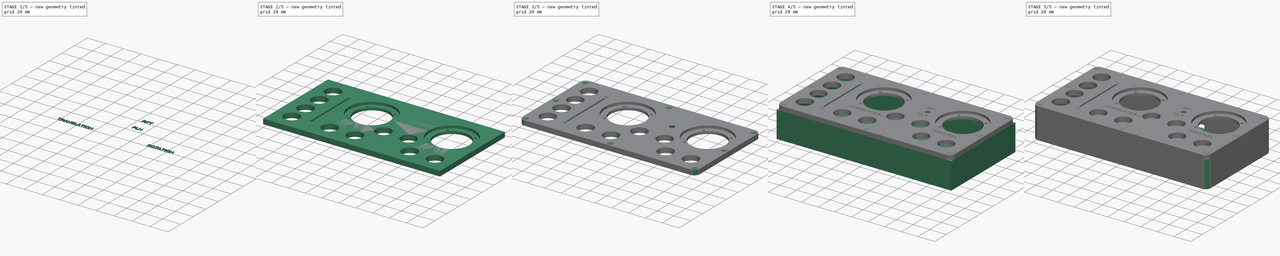
[diagram: build sequence overview — one tinted view per stage of 5, left to right]
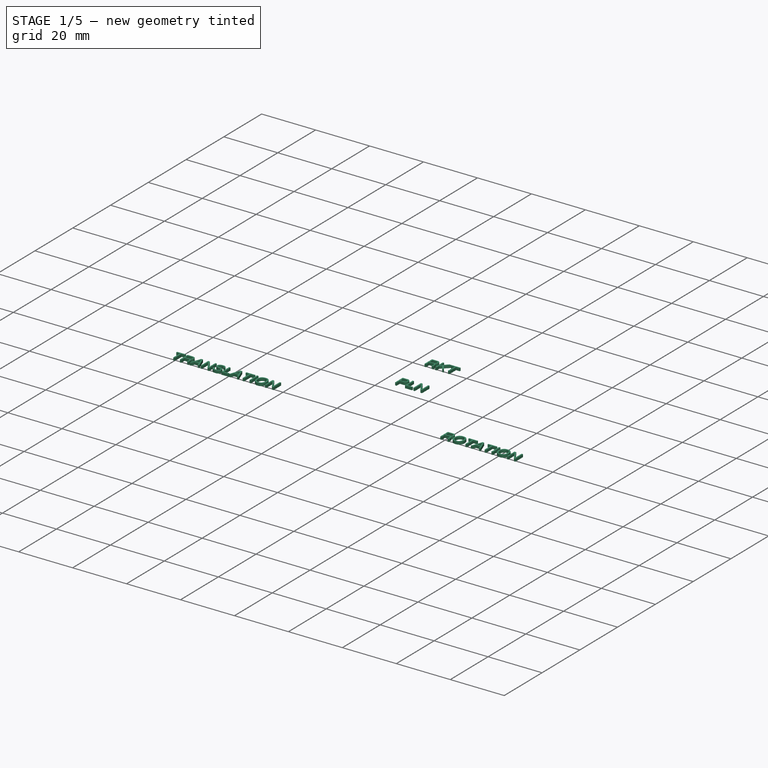
[diagram: stage 1 of 5 — iso view after this stage's code; geometry added in this stage tinted green]
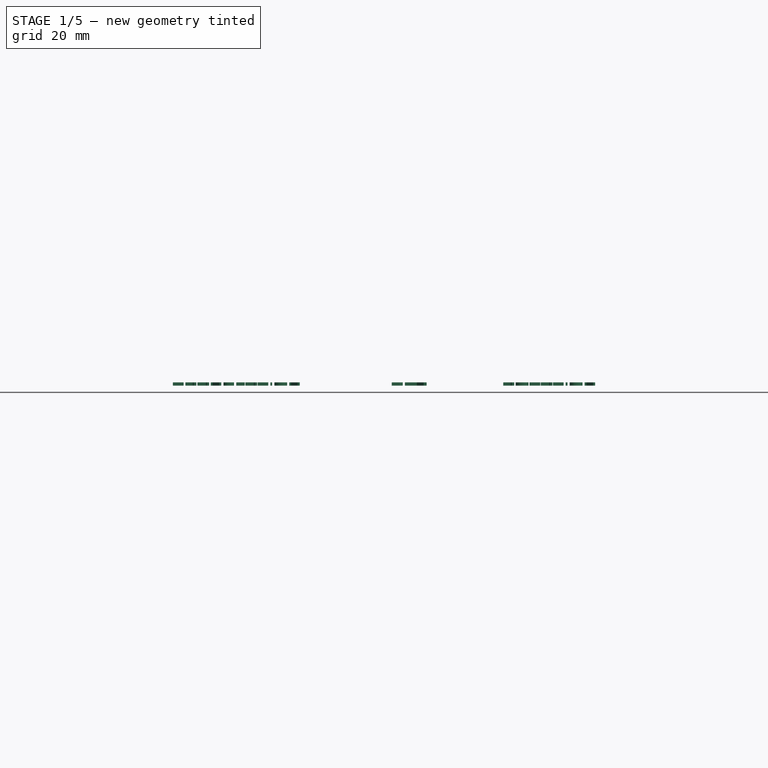
[diagram: stage 1 of 5 — front view after this stage's code; geometry added in this stage tinted green]
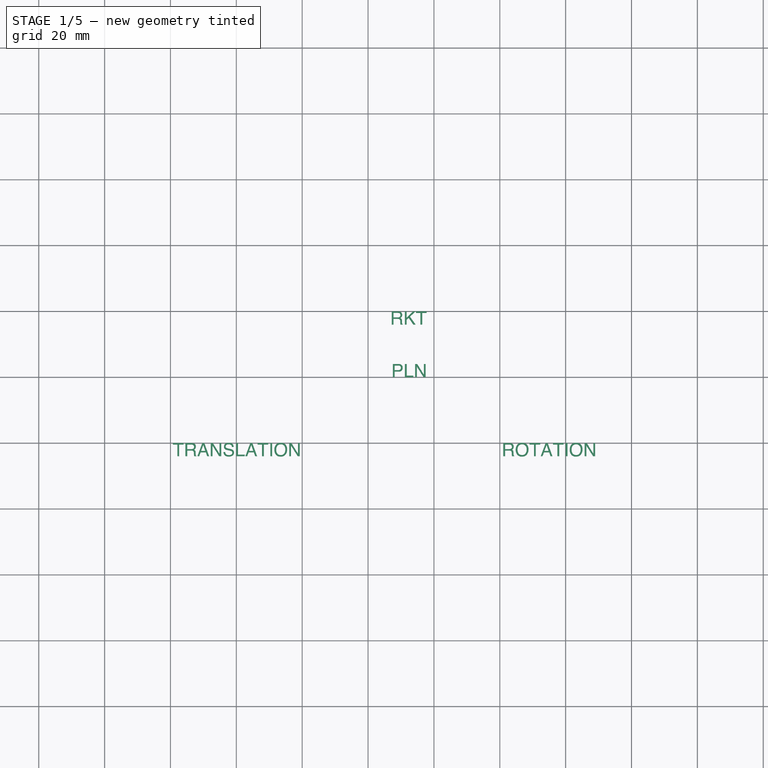
[diagram: stage 1 of 5 — top view after this stage's code; geometry added in this stage tinted green]
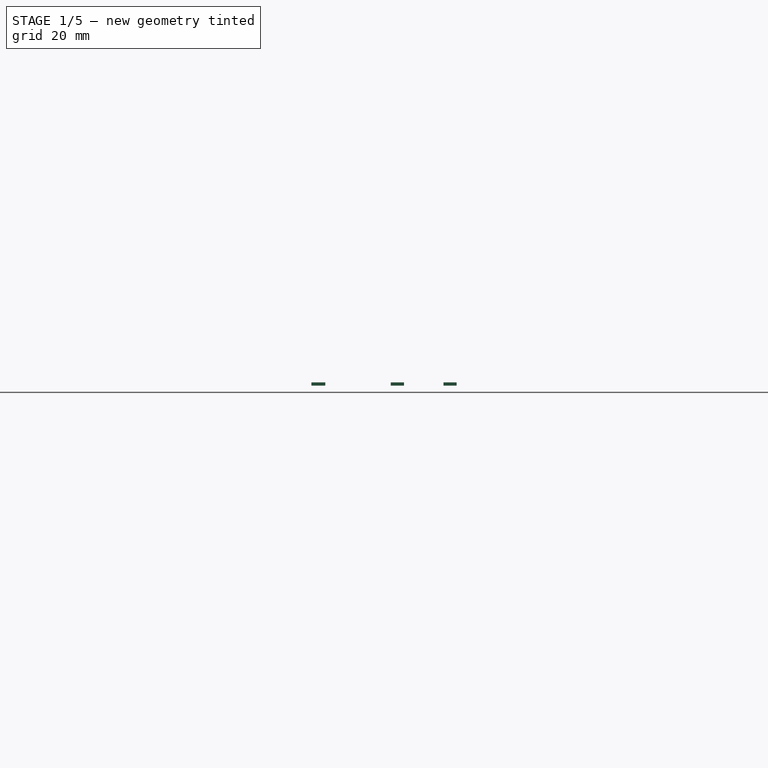
[diagram: stage 1 of 5 — right view after this stage's code; geometry added in this stage tinted green]
FCSTD DOCUMENT  (FreeCAD 1.0R39319 (Git))
Label: ksp-controller-v1_3
License: All rights reserved
LicenseURL: https://en.wikipedia.org/wiki/All_rights_reserved
objects: Sketcher::SketchObject×16, PartDesign::Pocket×11, App::Link×11, PartDesign::Fillet×7, PartDesign::SubShapeBinder×4, PartDesign::Pad×4, Part::Part2DObjectPython×4, Part::Extrusion×4, PartDesign::Hole×2, PartDesign::Body×2, TechDraw::DrawProjGroupItem×2, App::Part×1, TechDraw::DrawSVGTemplate×1, Part::MultiFuse×1, Part::Cut×1, TechDraw::DrawProjGroup×1, TechDraw::DrawPage×1
note: 120 computed .brp shape members not serialized (recipe doc carries the construction recipe); baked Part::Feature solids carry a one-line shape summary decoded from their .brp
EXTERNAL_REF file=references/ms131_button.FCStd obj=Body

FEATURE [Sketcher::SketchObject] Sketch  label="masterDim"
  ArcFitTolerance = 1e-06
  FullyConstrained = true
  MakeInternals = false
  sketch-geometry (4):
    g0: LineSegment StartX=0 StartY=0 StartZ=0 EndX=210 EndY=0 EndZ=0
    g1: LineSegment StartX=210 StartY=0 StartZ=0 EndX=210 EndY=110 EndZ=0
    g2: LineSegment StartX=210 StartY=110 StartZ=0 EndX=0 EndY=110 EndZ=0
    g3: LineSegment StartX=0 StartY=110 StartZ=0 EndX=0 EndY=0 EndZ=0
  constraints (11):
    c: Coincident(g0,g1)
    c: Coincident(g1,g2)
    c: Coincident(g2,g3)
    c: Coincident(g3,g0)
    c: Horizontal(g0)
    c: Horizontal(g2)
    c: Vertical(g1)
    c: Vertical(g3)
    c: Distance(g1,g3) = 210  'length'
    c: Distance(g0,g2) = 110  'width'
    c: Coincident(g0,g-1)
FEATURE [PartDesign::SubShapeBinder] Binder  label="dimBody"
  BindCopyOnChange = 0
  BindMode = 0
  ClaimChildren = false
  Context = -> Body [Binder.]
  Fuse = false
  MakeFace = true
  OffsetFill = false
  OffsetIntersection = false
  OffsetJoinType = 0
  OffsetOpenResult = false
  PartialLoad = false
  Refine = true
  Relative = true
  Support = -> [Sketch]
  _Version = 2
FEATURE [PartDesign::Pad] Pad  label="faceplateBody"
  Direction = (0,0,1)
  Length = 6
  Length2 = 10
  Profile = -> Binder
  Refine = true
  Suppressed = false
  Type = 0
FEATURE [PartDesign::Body] Body001  label="housing"
  AllowCompound = false
  Group = -> [Binder002,Binder003,Sketch012,Pad001,Sketch013,Pad002,Sketch014,Pad003,Fillet002,Pocket009,Fillet003,Fillet004,Sketch017,Pocket010,Sketch018,Pocket011,Fillet007]
  Origin = -> Origin002
  Tip = -> Fillet007
FEATURE [TechDraw::DrawSVGTemplate] Template
  Height = 210
  Orientation = 1
  Template = C:/Program Files/FreeCAD 1.0/data/Mod/TechDraw/Templates/Default_Template_A4_Landscape.svg
  Width = 297
FEATURE [Part::Part2DObjectPython] ShapeString  label="SSRotation"  # Draft 2D object (typed FeaturePython)
  FontFile = <userpath>/Documents/projects/ksp-controller/Helvetica.ttf
  Fuse = false
  Justification = 1
  JustificationReference = 0
  KeepLeftMargin = false
  MakeFace = true
  ObliqueAngle = 0
  ScaleToSize = true
  Size = 4
  String = ROTATION
  Tracking = 0
FEATURE [Part::Part2DObjectPython] ShapeString001  label="SSTranslation"  # Draft 2D object (typed FeaturePython)
  FontFile = <userpath>/Documents/projects/ksp-controller/Helvetica.ttf
  Fuse = false
  Justification = 1
  JustificationReference = 0
  KeepLeftMargin = false
  MakeFace = true
  ObliqueAngle = 0
  ScaleToSize = true
  Size = 4
  String = TRANSLATION
  Tracking = 0
FEATURE [Part::Part2DObjectPython] ShapeString002  label="SSRKT"  # Draft 2D object (typed FeaturePython)
  FontFile = <userpath>/Documents/projects/ksp-controller/Helvetica.ttf
  Fuse = false
  Justification = 7
  JustificationReference = 0
  KeepLeftMargin = false
  MakeFace = true
  ObliqueAngle = 0
  ScaleToSize = true
  Size = 4
  String = RKT
  Tracking = 0
FEATURE [Part::Part2DObjectPython] ShapeString003  label="SSPLN"  # Draft 2D object (typed FeaturePython)
  FontFile = <userpath>/Documents/projects/ksp-controller/Helvetica.ttf
  Fuse = false
  Justification = 1
  JustificationReference = 0
  KeepLeftMargin = false
  MakeFace = true
  ObliqueAngle = 0
  ScaleToSize = true
  Size = 4
  String = PLN
  Tracking = 0
FEATURE [Part::Extrusion] Extrude001  label="Translation"
  AttacherType = Attacher::AttachEngine3D
  AttachmentOffset = pos=(0,-30,-1) rot=(0,0,1;0rad)
  AttachmentSupport = -> [Sketch004]
  Base = -> ShapeString001
  Dir = (0,0,1)
  DirMode = 2
  FaceMakerClass = Part::FaceMakerBullseye
  FaceMakerMode = 3
  LengthFwd = 1
  LengthRev = 0
  MapMode = 1
  Placement = pos=(80,40,5) rot=(0,0,1;0rad)
  Solid = false
  Symmetric = false
FEATURE [Part::Extrusion] Extrude002  label="RKT"
  AttacherType = Attacher::AttachEngine3D
  AttachmentOffset = pos=(0,6,5) rot=(0,0,1;0rad)
  AttachmentSupport = -> [Sketch009]
  Base = -> ShapeString002
  Dir = (0,0,1)
  DirMode = 2
  FaceMakerClass = Part::FaceMakerBullseye
  FaceMakerMode = 3
  LengthFwd = 1
  LengthRev = 0
  MapMode = 1
  Placement = pos=(132.5,76,5) rot=(0,0,1;0rad)
  Solid = false
  Symmetric = false
  expr: .AttachmentOffset.Base.z = <<faceplateBody>>.Length - 1 mm
FEATURE [Part::Extrusion] Extrude003  label="PLN"
  AttacherType = Attacher::AttachEngine3D
  AttachmentOffset = pos=(0,-6,5) rot=(0,0,1;0rad)
  AttachmentSupport = -> [Sketch009]
  Base = -> ShapeString003
  Dir = (0,0,1)
  DirMode = 2
  FaceMakerClass = Part::FaceMakerBullseye
  FaceMakerMode = 3
  LengthFwd = 1
  LengthRev = 0
  MapMode = 1
  Placement = pos=(132.5,64,5) rot=(0,0,1;0rad)
  Solid = false
  Symmetric = false
  expr: .AttachmentOffset.Base.z = <<faceplateBody>>.Length - 1 mm
FEATURE [Part::Extrusion] Extrude  label="Roation"
  AttacherType = Attacher::AttachEngine3D
  AttachmentOffset = pos=(0,-30,-1) rot=(0,0,1;0rad)
  AttachmentSupport = -> [Sketch004]
  Base = -> ShapeString
  Dir = (0,0,1)
  DirMode = 2
  FaceMakerClass = Part::FaceMakerBullseye
  FaceMakerMode = 3
  LengthFwd = 1
  LengthRev = 0
  MapMode = 1
  Placement = pos=(175,40,5) rot=(0,0,1;0rad)
  Solid = false
  Symmetric = false
FEATURE [Part::MultiFuse] Fusion  label="textElemets"
  Refine = true
  Shapes = -> [Extrude,Extrude001,Extrude002,Extrude003]
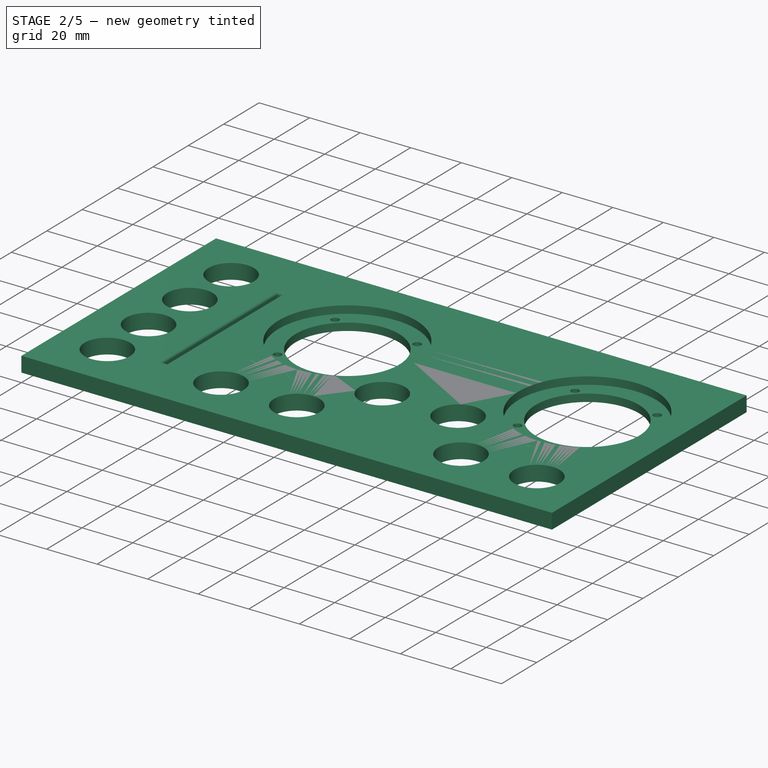
[diagram: stage 2 of 5 — iso view after this stage's code; geometry added in this stage tinted green]
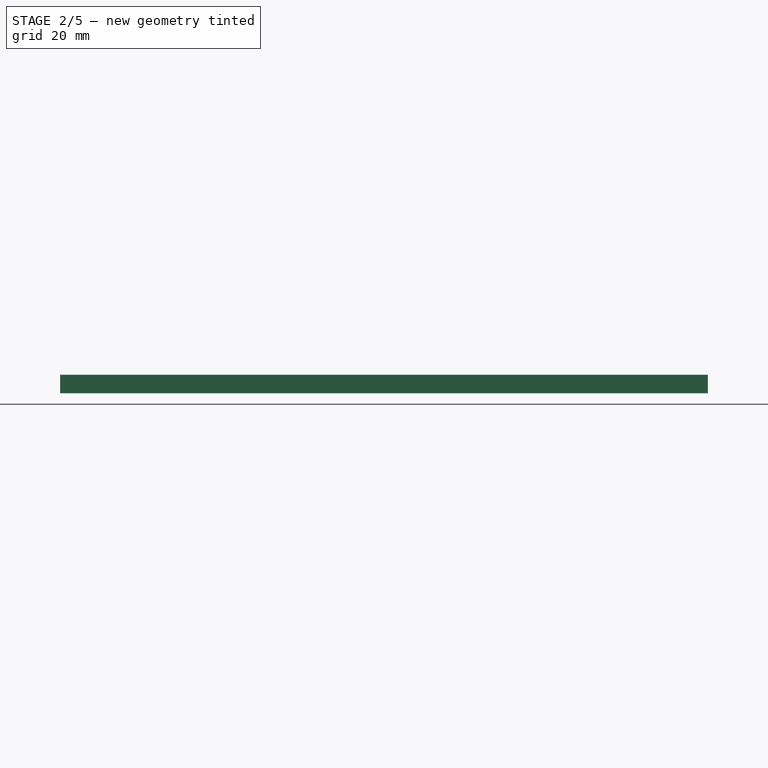
[diagram: stage 2 of 5 — front view after this stage's code; geometry added in this stage tinted green]
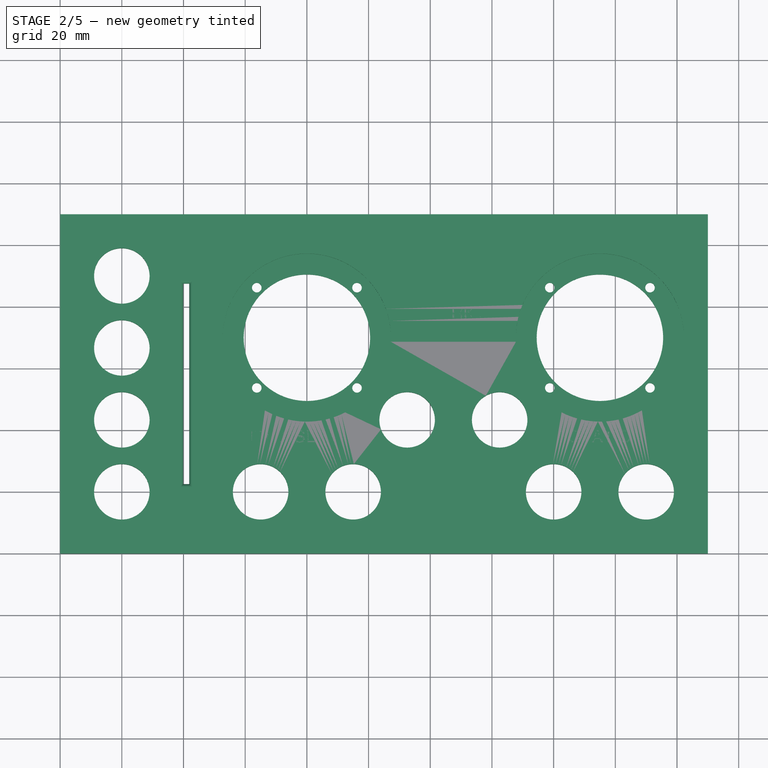
[diagram: stage 2 of 5 — top view after this stage's code; geometry added in this stage tinted green]
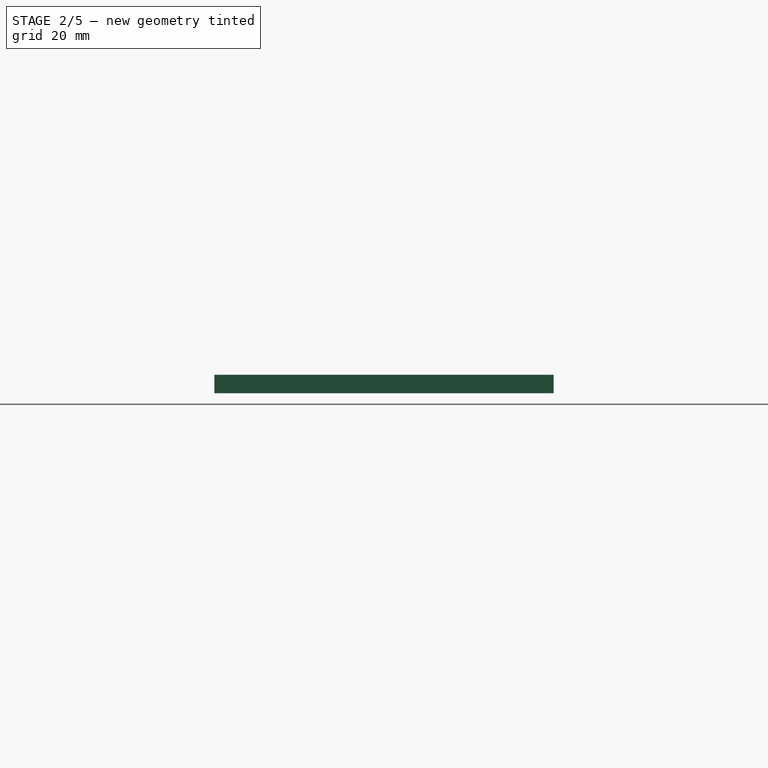
[diagram: stage 2 of 5 — right view after this stage's code; geometry added in this stage tinted green]
FEATURE [Sketcher::SketchObject] Sketch003
  ArcFitTolerance = 1e-06
  AttachmentSupport = -> [XY_Plane]
  ExternalGeometry = -> [Binder]
  FullyConstrained = true
  MakeInternals = false
  MapMode = 5
  sketch-geometry (20):
    g0: Circle CenterX=80 CenterY=70 CenterZ=0 NormalX=0 NormalY=0 NormalZ=1 AngleXU=0 Radius=20.5
    g1: Circle CenterX=96.25 CenterY=86.25 CenterZ=0 NormalX=0 NormalY=0 NormalZ=1 AngleXU=0 Radius=1.55
    g2: Circle CenterX=96.25 CenterY=53.75 CenterZ=0 NormalX=0 NormalY=0 NormalZ=1 AngleXU=0 Radius=1.55
    g3: Circle CenterX=63.75 CenterY=53.75 CenterZ=0 NormalX=0 NormalY=0 NormalZ=1 AngleXU=0 Radius=1.55
    g4: Circle CenterX=63.75 CenterY=86.25 CenterZ=0 NormalX=0 NormalY=0 NormalZ=1 AngleXU=0 Radius=1.55
    g5: GeomPoint X=80 Y=70 Z=0
    g6: LineSegment [constr] StartX=63.75 StartY=86.25 StartZ=0 EndX=96.25 EndY=86.25 EndZ=0
    g7: LineSegment [constr] StartX=63.75 StartY=53.75 StartZ=0 EndX=96.25 EndY=53.75 EndZ=0
    g8: LineSegment [constr] StartX=96.25 StartY=53.75 StartZ=0 EndX=96.25 EndY=86.25 EndZ=0
    g9: LineSegment [constr] StartX=63.75 StartY=53.75 StartZ=0 EndX=63.75 EndY=86.25 EndZ=0
    g10: Circle CenterX=175 CenterY=70 CenterZ=0 NormalX=0 NormalY=0 NormalZ=1 AngleXU=0 Radius=20.5
    g11: Circle CenterX=191.25 CenterY=86.25 CenterZ=0 NormalX=0 NormalY=0 NormalZ=1 AngleXU=0 Radius=1.55
    g12: Circle CenterX=191.25 CenterY=53.75 CenterZ=0 NormalX=0 NormalY=0 NormalZ=1 AngleXU=0 Radius=1.55
    g13: Circle CenterX=158.75 CenterY=53.75 CenterZ=0 NormalX=0 NormalY=0 NormalZ=1 AngleXU=0 Radius=1.55
    g14: Circle CenterX=158.75 CenterY=86.25 CenterZ=0 NormalX=0 NormalY=0 NormalZ=1 AngleXU=0 Radius=1.55
    g15: GeomPoint X=175 Y=70 Z=0
    g16: LineSegment [constr] StartX=158.75 StartY=86.25 StartZ=0 EndX=191.25 EndY=86.25 EndZ=0
    g17: LineSegment [constr] StartX=158.75 StartY=53.75 StartZ=0 EndX=191.25 EndY=53.75 EndZ=0
    g18: LineSegment [constr] StartX=191.25 StartY=53.75 StartZ=0 EndX=191.25 EndY=86.25 EndZ=0
    g19: LineSegment [constr] StartX=158.75 StartY=53.75 StartZ=0 EndX=158.75 EndY=86.25 EndZ=0
  constraints (46):
    c: Equal(g1,g4)
    c: Equal(g4,g3)
    c: Equal(g3,g2)
    c: Diameter(g0) = 41
    c: Diameter(g1) = 3.1
    c: Coincident(g5,g0)
    c: DistanceX(g4,g1) = 32.5
    c: Coincident(g6,g4)
    c: Coincident(g6,g1)
    c: Horizontal(g6)
    c: Coincident(g7,g3)
    c: Coincident(g7,g2)
    c: Horizontal(g7)
    c: Coincident(g8,g2)
    c: Coincident(g8,g1)
    c: Vertical(g8)
    c: Coincident(g9,g3)
    c: Coincident(g9,g4)
    c: Vertical(g9)
    c: Equal(g8,g6)
    c: Symmetric(g3,g1,g0)
    c: DistanceY(g-1,g0) = 70
    c: Equal(g11,g14)
    c: Equal(g14,g13)
    c: Equal(g13,g12)
    c: Equal(g0,g10)
    c: Equal(g1,g11)
    c: Coincident(g15,g10)
    c: DistanceX(g14,g11) = 32.5
    c: Coincident(g16,g14)
    c: Coincident(g16,g11)
    c: Horizontal(g16)
    c: Coincident(g17,g13)
    c: Coincident(g17,g12)
    c: Horizontal(g17)
    c: Coincident(g18,g12)
    c: Coincident(g18,g11)
    c: Vertical(g18)
    c: Coincident(g19,g13)
    c: Coincident(g19,g14)
    c: Vertical(g19)
    c: Equal(g18,g16)
    c: Symmetric(g13,g11,g10)
    c: Horizontal(g10,g0)
    c: DistanceX(g0,g10) = 95
    c: DistanceX(g10,g-4) = 35
FEATURE [Sketcher::SketchObject] Sketch001
  ArcFitTolerance = 1e-06
  AttachmentSupport = -> [XY_Plane]
  ExternalGeometry = -> [Binder,Sketch003]
  FullyConstrained = true
  MakeInternals = false
  MapMode = 5
  sketch-geometry (37):
    g0: Circle CenterX=20 CenterY=20 CenterZ=0 NormalX=0 NormalY=0 NormalZ=1 AngleXU=0 Radius=9
    g1: LineSegment [constr] StartX=20 StartY=20 StartZ=0 EndX=0 EndY=20 EndZ=0
    g2: LineSegment [constr] StartX=20 StartY=20 StartZ=0 EndX=20 EndY=0 EndZ=0
    g3: Circle CenterX=20 CenterY=43.3333 CenterZ=0 NormalX=0 NormalY=0 NormalZ=1 AngleXU=0 Radius=9
    g4: Circle CenterX=20 CenterY=66.6667 CenterZ=0 NormalX=0 NormalY=0 NormalZ=1 AngleXU=0 Radius=9
    g5: Circle CenterX=20 CenterY=90 CenterZ=0 NormalX=0 NormalY=0 NormalZ=1 AngleXU=0 Radius=9
    g6: LineSegment [constr] StartX=20 StartY=20 StartZ=0 EndX=20 EndY=43.3333 EndZ=0
    g7: LineSegment [constr] StartX=20 StartY=43.3333 StartZ=0 EndX=20 EndY=66.6667 EndZ=0
    g8: LineSegment [constr] StartX=20 StartY=66.6667 StartZ=0 EndX=20 EndY=90 EndZ=0
    g9: LineSegment [constr] StartX=20 StartY=90 StartZ=0 EndX=20 EndY=110 EndZ=0
    g10: Circle CenterX=65 CenterY=20 CenterZ=0 NormalX=0 NormalY=0 NormalZ=1 AngleXU=0 Radius=9
    g11: Circle CenterX=95 CenterY=20 CenterZ=0 NormalX=0 NormalY=0 NormalZ=1 AngleXU=0 Radius=9
    g12: Circle CenterX=160 CenterY=20 CenterZ=0 NormalX=0 NormalY=0 NormalZ=1 AngleXU=0 Radius=9
    g13: Circle CenterX=190 CenterY=20 CenterZ=0 NormalX=0 NormalY=0 NormalZ=1 AngleXU=0 Radius=9
    g14: LineSegment [constr] StartX=190 StartY=20 StartZ=0 EndX=210 EndY=20 EndZ=0
    g15: Circle CenterX=112.5 CenterY=43.3333 CenterZ=0 NormalX=0 NormalY=0 NormalZ=1 AngleXU=0 Radius=9
    g16: Circle CenterX=142.5 CenterY=43.3333 CenterZ=0 NormalX=0 NormalY=0 NormalZ=1 AngleXU=0 Radius=9
    g17: LineSegment [constr] StartX=95 StartY=20 StartZ=0 EndX=112.5 EndY=43.3333 EndZ=0
    g18: LineSegment [constr] StartX=142.5 StartY=43.3333 StartZ=0 EndX=160 EndY=20 EndZ=0
    g19: GeomPoint X=20 Y=20 Z=0
    g20: GeomPoint X=20 Y=43.3333 Z=0
    g21: GeomPoint X=20 Y=66.6667 Z=0
    g22: GeomPoint X=20 Y=90 Z=0
    g23: GeomPoint X=65 Y=20 Z=0
    g24: GeomPoint X=95 Y=20 Z=0
    g25: GeomPoint X=112.5 Y=43.3333 Z=0
    g26: GeomPoint X=142.5 Y=43.3333 Z=0
    g27: GeomPoint X=160 Y=20 Z=0
    g28: GeomPoint X=190 Y=20 Z=0
    g29: LineSegment [constr] StartX=80 StartY=70 StartZ=0 EndX=80 EndY=20 EndZ=0
    g30: LineSegment [constr] StartX=65 StartY=20 StartZ=0 EndX=80 EndY=20 EndZ=0
    g31: LineSegment [constr] StartX=80 StartY=20 StartZ=0 EndX=95 EndY=20 EndZ=0
    g32: LineSegment [constr] StartX=160 StartY=20 StartZ=0 EndX=175 EndY=20 EndZ=0
    g33: LineSegment [constr] StartX=175 StartY=20 StartZ=0 EndX=190 EndY=20 EndZ=0
    g34: LineSegment [constr] StartX=175 StartY=20 StartZ=0 EndX=175 EndY=70 EndZ=0
    g35: LineSegment [constr] StartX=112.5 StartY=43.3333 StartZ=0 EndX=127.5 EndY=43.3333 EndZ=0
    g36: LineSegment [constr] StartX=127.5 StartY=43.3333 StartZ=0 EndX=142.5 EndY=43.3333 EndZ=0
  constraints (81):
    c: Diameter(g0) = 18
    c: Coincident(g1,g0)
    c: Horizontal(g1)
    c: PointOnObject(g1,g-2)
    c: Coincident(g2,g0)
    c: PointOnObject(g2,g-1)
    c: Vertical(g2)
    c: DistanceX(g1,g1) = 20  'bsidePad'
    c: DistanceY(g2,g2) = 20  'bbottomPad'
    c: Coincident(g6,g0)
    c: Coincident(g6,g3)
    c: Coincident(g7,g3)
    c: Coincident(g7,g4)
    c: Vertical(g7)
    c: Coincident(g8,g4)
    c: Coincident(g8,g5)
    c: Coincident(g9,g5)
    c: Vertical(g9)
    c: PointOnObject(g9,g-3)
    c: Vertical(g6)
    c: Vertical(g8)
    c: Equal(g7,g8)
    c: Equal(g8,g6)
    c: Equal(g0,g3)
    c: Equal(g3,g4)
    c: Equal(g4,g5)
    c: Horizontal(g10,g11)
    c: Horizontal(g11,g0)
    c: Equal(g0,g10)
    c: Equal(g10,g11)
    c: Coincident(g14,g13)
    c: PointOnObject(g14,g-4)
    c: Horizontal(g14)
    c: Equal(g1,g14)
    c: Equal(g12,g13)
    c: Equal(g13,g11)
    c: Horizontal(g13,g12)
    c: Horizontal(g12,g11)
    c: Equal(g16,g15)
    c: Equal(g15,g0)
    c: Horizontal(g15,g16)
    c: Horizontal(g16,g3)
    c: Coincident(g17,g11)
    c: Coincident(g17,g15)
    c: Coincident(g18,g16)
    c: Coincident(g18,g12)
    c: Equal(g18,g17)
    c: Coincident(g19,g0)
    c: Coincident(g20,g3)
    c: Coincident(g21,g4)
    c: Coincident(g22,g5)
    c: Coincident(g23,g10)
    c: Coincident(g24,g11)
    c: Coincident(g25,g15)
    c: Coincident(g26,g16)
    c: Coincident(g27,g12)
    c: Coincident(g28,g13)
    c: DistanceY(g9,g9) = 20  'btopPad'
    c: Coincident(g29,g-5)
    c: Vertical(g29)
    c: Coincident(g30,g10)
    c: Coincident(g30,g29)
    c: Horizontal(g30)
    c: Coincident(g31,g29)
    c: Coincident(g31,g11)
    c: Equal(g31,g30)
    c: Coincident(g32,g12)
    c: Horizontal(g32)
    c: Coincident(g33,g32)
    c: Coincident(g33,g13)
    c: Coincident(g34,g32)
    c: Coincident(g34,g-6)
    c: Vertical(g34)
    c: Equal(g31,g32)
    c: Equal(g32,g33)
    c: Coincident(g35,g15)
    c: Horizontal(g35)
    c: Coincident(g36,g35)
    c: Coincident(g36,g16)
    c: Equal(g33,g36)
    c: Equal(g36,g35)
FEATURE [PartDesign::Pocket] Pocket  label="bottonClearance"
  BaseFeature = -> Pad
  Direction = (0,0,-1)
  Length = 5
  Length2 = 5
  Profile = -> Sketch001
  ReferenceAxis = -> Sketch001 [N_Axis]
  Refine = true
  Reversed = true
  Suppressed = false
  Type = 1
FEATURE [PartDesign::Pocket] Pocket002  label="joystickClearance"
  BaseFeature = -> Pocket
  Direction = (0,0,-1)
  Length = 5
  Length2 = 5
  Profile = -> Sketch003
  ReferenceAxis = -> Sketch003 [N_Axis]
  Refine = true
  Reversed = true
  Suppressed = false
  Type = 1
FEATURE [Sketcher::SketchObject] Sketch004
  ArcFitTolerance = 1e-06
  AttachmentOffset = pos=(0,0,6) rot=(0,0,1;0rad)
  AttachmentSupport = -> [XY_Plane]
  ExternalGeometry = -> [Sketch003]
  FullyConstrained = true
  MakeInternals = false
  MapMode = 5
  Placement = pos=(0,0,6) rot=(0,0,1;0rad)
  expr: .AttachmentOffset.Base.z = <<faceplateBody>>.Length
  sketch-geometry (4):
    g0: Circle CenterX=80 CenterY=70 CenterZ=0 NormalX=0 NormalY=0 NormalZ=1 AngleXU=0 Radius=27.25
    g1: Circle CenterX=175 CenterY=70 CenterZ=0 NormalX=0 NormalY=0 NormalZ=1 AngleXU=0 Radius=27.25
    g2: GeomPoint X=80 Y=70 Z=0
    g3: GeomPoint X=175 Y=70 Z=0
  constraints (6):
    c: Diameter(g0) = 54.5
    c: Coincident(g0,g-3)
    c: Coincident(g1,g-4)
    c: Equal(g1,g0)
    c: Coincident(g3,g1)
    c: Coincident(g2,g0)
FEATURE [PartDesign::Pocket] Pocket003  label="joystickPocket"
  BaseFeature = -> Pocket002
  Direction = (0,0,-1)
  Length = 3
  Length2 = 5
  Profile = -> Sketch004
  ReferenceAxis = -> Sketch004 [N_Axis]
  Refine = true
  Suppressed = false
  Type = 0
FEATURE [Sketcher::SketchObject] Sketch005
  ArcFitTolerance = 1e-06
  AttachmentSupport = -> [XY_Plane]
  ExternalGeometry = -> [Sketch001,Sketch004]
  FullyConstrained = true
  MakeInternals = false
  MapMode = 5
  sketch-geometry (11):
    g0: LineSegment StartX=39.875 StartY=22.5 StartZ=0 EndX=41.875 EndY=22.5 EndZ=0
    g1: LineSegment StartX=41.875 StartY=22.5 StartZ=0 EndX=41.875 EndY=87.5 EndZ=0
    g2: LineSegment StartX=41.875 StartY=87.5 StartZ=0 EndX=39.875 EndY=87.5 EndZ=0
    g3: LineSegment StartX=39.875 StartY=87.5 StartZ=0 EndX=39.875 EndY=22.5 EndZ=0
    g4: GeomPoint [constr] X=39.875 Y=55 Z=0
    g5: LineSegment [constr] StartX=20 StartY=66.6667 StartZ=0 EndX=20 EndY=43.3333 EndZ=0
    g6: GeomPoint [constr] X=20 Y=55 Z=0
    g7: GeomPoint X=52.75 Y=70 Z=0
    g8: LineSegment [constr] StartX=52.75 StartY=70 StartZ=0 EndX=41.875 EndY=70 EndZ=0
    g9: GeomPoint [constr] X=29 Y=66.6667 Z=0
    g10: LineSegment [constr] StartX=29 StartY=66.6667 StartZ=0 EndX=39.875 EndY=66.6667 EndZ=0
  constraints (26):
    c: Coincident(g0,g1)
    c: Coincident(g1,g2)
    c: Coincident(g2,g3)
    c: Coincident(g3,g0)
    c: Horizontal(g0)
    c: Horizontal(g2)
    c: Vertical(g1)
    c: Vertical(g3)
    c: DistanceY(g1,g1) = 65
    c: DistanceX(g0,g0) = 2
    c: Symmetric(g3,g3,g4)
    c: Coincident(g5,g-3)
    c: Symmetric(g5,g5,g6)
    c: Coincident(g-4,g5)
    c: Horizontal(g6,g4)
    c: PointOnObject(g7,g-5)
    c: Horizontal(g7,g-5)
    c: Coincident(g8,g7)
    c: PointOnObject(g8,g1)
    c: Horizontal(g8)
    c: PointOnObject(g9,g-3)
    c: Horizontal(g5,g9)
    c: Coincident(g10,g9)
    c: PointOnObject(g10,g3)
    c: Horizontal(g10)
    c: Equal(g10,g8)
FEATURE [PartDesign::Pocket] Pocket004  label="slidepotClearance"
  BaseFeature = -> Pocket003
  Direction = (0,0,-1)
  Length = 5
  Length2 = 5
  Profile = -> Sketch005
  ReferenceAxis = -> Sketch005 [N_Axis]
  Refine = true
  Reversed = true
  Suppressed = false
  Type = 1
FEATURE [Sketcher::SketchObject] Sketch019
  ArcFitTolerance = 1e-06
  AttachmentSupport = -> [XY_Plane]
  ExternalGeometry = -> [Sketch005]
  FullyConstrained = true
  MakeInternals = false
  MapMode = 5
  sketch-geometry (5):
    g0: LineSegment StartX=36.125 StartY=92.75 StartZ=0 EndX=36.125 EndY=17.25 EndZ=0
    g1: LineSegment StartX=36.125 StartY=17.25 StartZ=0 EndX=45.625 EndY=17.25 EndZ=0
    g2: LineSegment StartX=45.625 StartY=17.25 StartZ=0 EndX=45.625 EndY=92.75 EndZ=0
    g3: LineSegment StartX=45.625 StartY=92.75 StartZ=0 EndX=36.125 EndY=92.75 EndZ=0
    g4: GeomPoint X=40.875 Y=55 Z=0
  constraints (12):
    c: Coincident(g0,g1)
    c: Coincident(g1,g2)
    c: Coincident(g2,g3)
    c: Coincident(g3,g0)
    c: Vertical(g0)
    c: Vertical(g2)
    c: Horizontal(g1)
    c: Horizontal(g3)
    c: Symmetric(g-3,g-4,g4)
    c: Symmetric(g2,g0,g4)
    c: DistanceX(g3,g3) = 9.5
    c: DistanceY(g0,g0) = 75.5
FEATURE [PartDesign::Fillet] Fillet006
  Base = -> Pocket004 [Edge45,Edge47,Edge46,Edge48]
  BaseFeature = -> Pocket004
  Radius = 1
  Refine = true
  SupportTransform = false
  Suppressed = false
  UseAllEdges = false
FEATURE [PartDesign::Pocket] Pocket012  label="slidepotPocket"
  BaseFeature = -> Fillet006
  Direction = (0,0,-1)
  Length = 3
  Length2 = 5
  Profile = -> Sketch019
  ReferenceAxis = -> Sketch019 [N_Axis]
  Refine = true
  Reversed = true
  Suppressed = false
  Type = 0
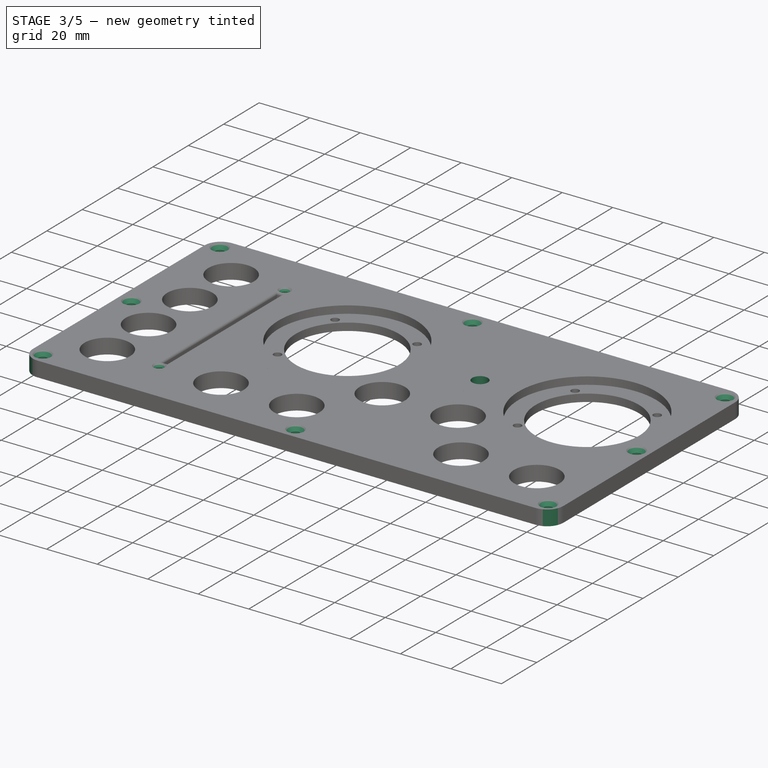
[diagram: stage 3 of 5 — iso view after this stage's code; geometry added in this stage tinted green]
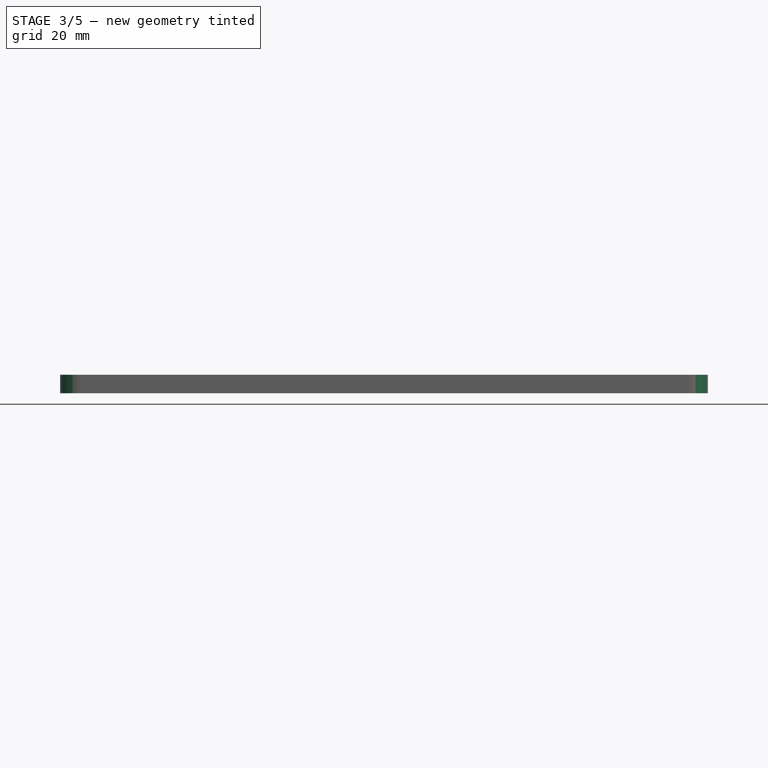
[diagram: stage 3 of 5 — front view after this stage's code; geometry added in this stage tinted green]
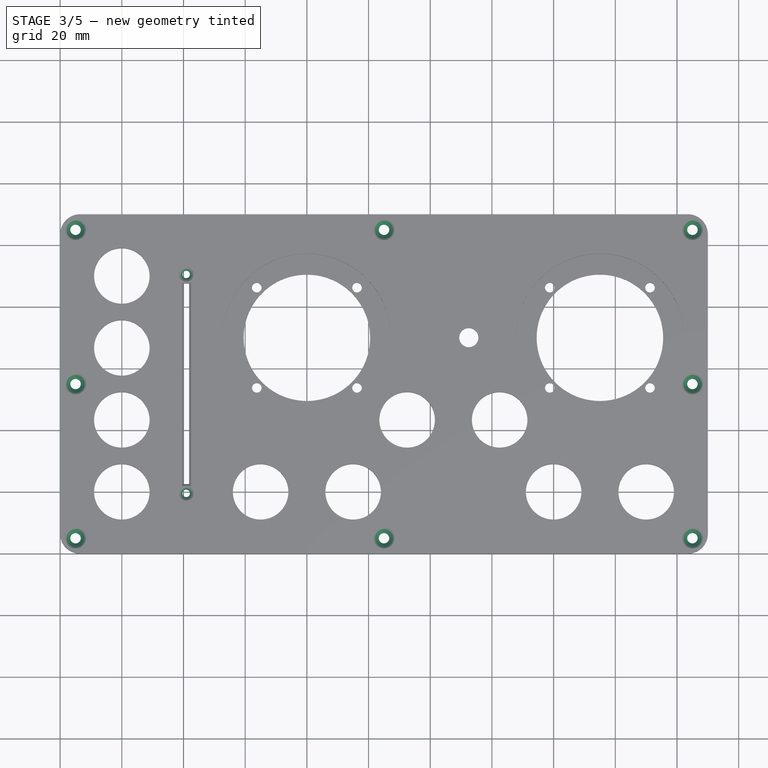
[diagram: stage 3 of 5 — top view after this stage's code; geometry added in this stage tinted green]
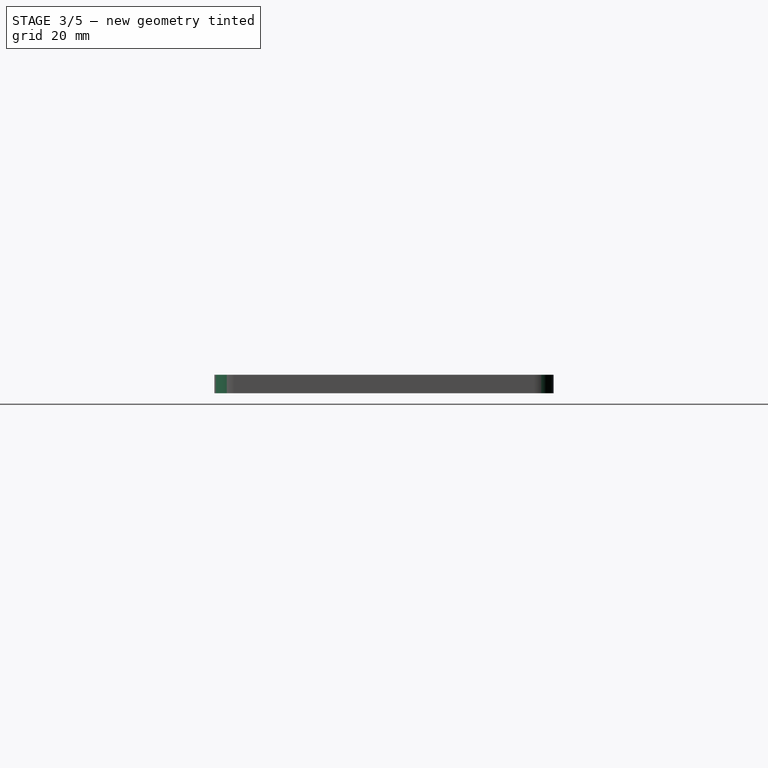
[diagram: stage 3 of 5 — right view after this stage's code; geometry added in this stage tinted green]
FEATURE [PartDesign::Hole] Hole  label="slidepotScrew"
  BaseFeature = -> Pocket012
  CustomThreadClearance = 0
  Depth = 479.025
  DepthType = 1
  Diameter = 2.4
  DrillForDepth = false
  DrillPoint = 1
  DrillPointAngle = 118
  HoleCutCountersinkAngle = 90
  HoleCutCustomValues = false
  HoleCutDepth = 0
  HoleCutDiameter = 4.7
  HoleCutType = 5
  ModelThread = false
  Profile = -> Sketch006
  Refine = true
  Suppressed = false
  Tapered = false
  TaperedAngle = 90
  ThreadClass = 0
  ThreadDepth = 479.025
  ThreadDepthType = 0
  ThreadDirection = 0
  ThreadFit = 0
  ThreadSize = 6
  ThreadType = 1
  Threaded = false
  UseCustomThreadClearance = false
FEATURE [PartDesign::Pocket] Pocket006  label="switchClearance"
  BaseFeature = -> Hole
  Direction = (0,0,-1)
  Length = 5
  Length2 = 5
  Profile = -> Sketch009
  ReferenceAxis = -> Sketch009 [N_Axis]
  Refine = true
  Reversed = true
  Suppressed = false
  Type = 1
FEATURE [PartDesign::Pocket] Pocket008  label="switchPocket"
  BaseFeature = -> Pocket006
  Direction = (0,0,-1)
  Length = 3
  Length2 = 5
  Profile = -> Sketch011
  ReferenceAxis = -> Sketch011 [N_Axis]
  Refine = true
  Reversed = true
  Suppressed = false
  Type = 0
FEATURE [PartDesign::Pocket] Pocket007  label="switchPin"
  BaseFeature = -> Pocket008
  Direction = (0,0,-1)
  Length = 4
  Length2 = 5
  Profile = -> Sketch010
  ReferenceAxis = -> Sketch010 [N_Axis]
  Refine = true
  Reversed = true
  Suppressed = false
  Type = 0
FEATURE [PartDesign::Hole] Hole001  label="screwHole"
  BaseFeature = -> Pocket007
  CustomThreadClearance = 0
  Depth = 560.385
  DepthType = 1
  Diameter = 3.4
  DrillForDepth = false
  DrillPoint = 1
  DrillPointAngle = 118
  HoleCutCountersinkAngle = 90
  HoleCutCustomValues = false
  HoleCutDepth = 0
  HoleCutDiameter = 6.7
  HoleCutType = 5
  ModelThread = false
  Profile = -> Binder001
  Refine = true
  Suppressed = false
  Tapered = false
  TaperedAngle = 90
  ThreadClass = 0
  ThreadDepth = 560.385
  ThreadDepthType = 0
  ThreadDirection = 0
  ThreadFit = 0
  ThreadSize = 9
  ThreadType = 1
  Threaded = false
  UseCustomThreadClearance = false
FEATURE [PartDesign::Fillet] Fillet  label="cornerFillet"
  Base = -> Hole001 [Edge39,Edge36,Edge37,Edge41]
  BaseFeature = -> Hole001
  Radius = 6.5
  Refine = true
  SupportTransform = false
  Suppressed = false
  UseAllEdges = false
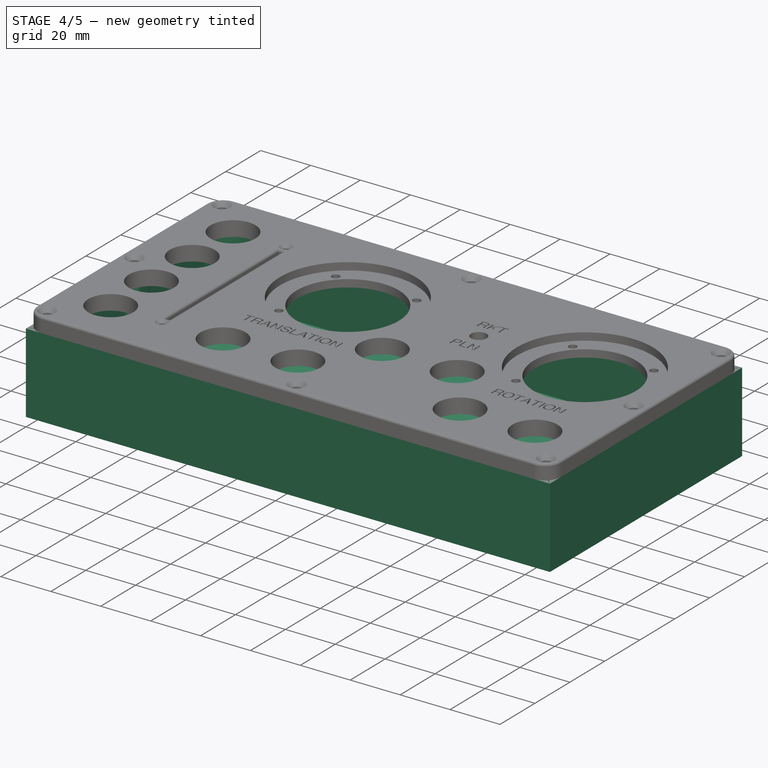
[diagram: stage 4 of 5 — iso view after this stage's code; geometry added in this stage tinted green]
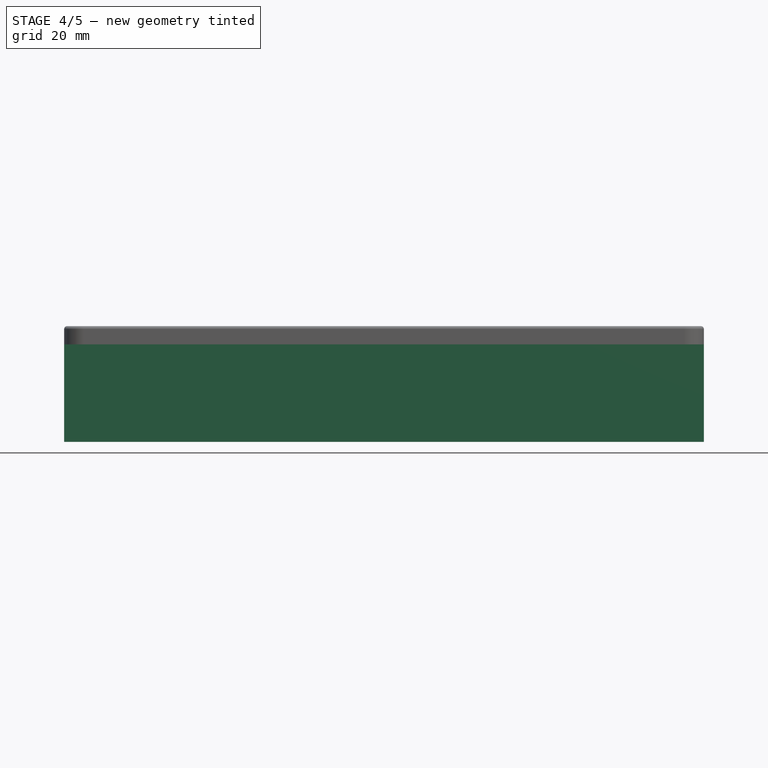
[diagram: stage 4 of 5 — front view after this stage's code; geometry added in this stage tinted green]
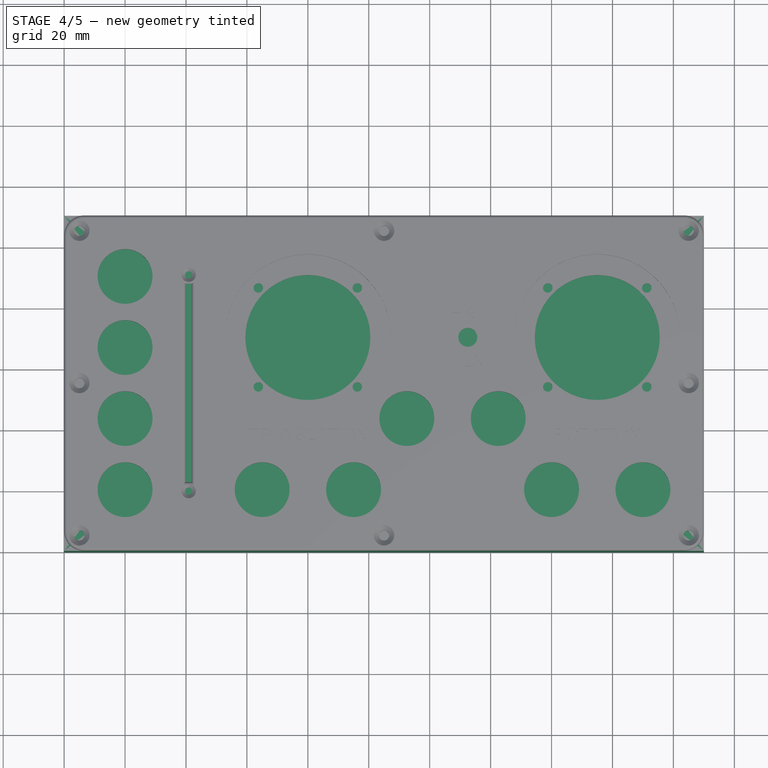
[diagram: stage 4 of 5 — top view after this stage's code; geometry added in this stage tinted green]
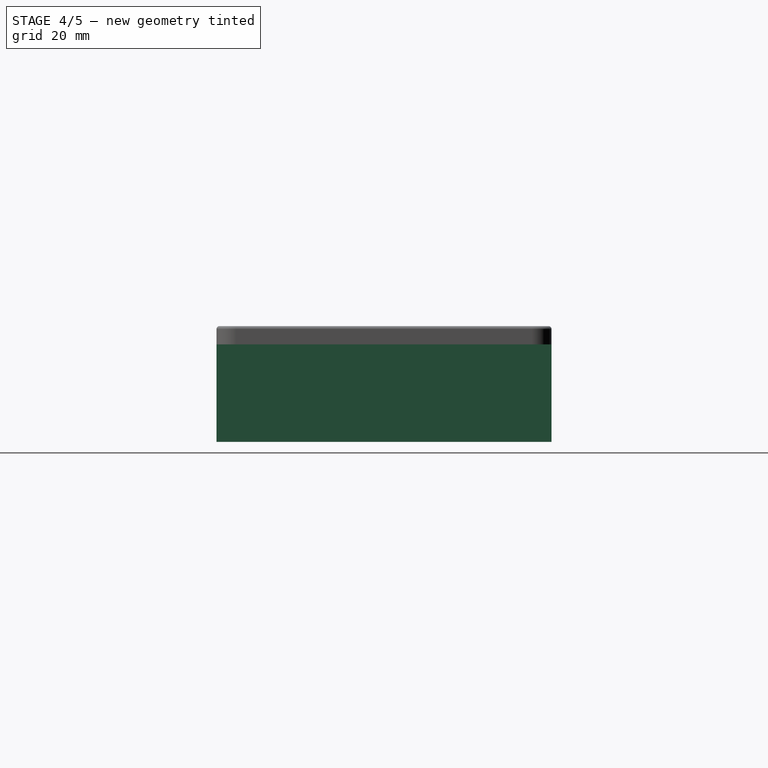
[diagram: stage 4 of 5 — right view after this stage's code; geometry added in this stage tinted green]
FEATURE [Sketcher::SketchObject] Sketch006
  ArcFitTolerance = 1e-06
  AttachmentOffset = pos=(0,0,6) rot=(0,0,1;0rad)
  AttachmentSupport = -> [XY_Plane]
  ExternalGeometry = -> [Sketch005]
  FullyConstrained = false
  MakeInternals = false
  MapMode = 5
  Placement = pos=(0,0,6) rot=(0,0,1;0rad)
  sketch-geometry (4):
    g0: Circle CenterX=40.875 CenterY=19.5 CenterZ=0 NormalX=0 NormalY=0 NormalZ=1 AngleXU=0 Radius=1.11228
    g1: Circle CenterX=40.875 CenterY=90.5 CenterZ=0 NormalX=0 NormalY=0 NormalZ=1 AngleXU=0 Radius=1.25988
    g2: LineSegment [constr] StartX=40.875 StartY=22.5 StartZ=0 EndX=40.875 EndY=19.5 EndZ=0
    g3: LineSegment [constr] StartX=40.875 StartY=87.5 StartZ=0 EndX=40.875 EndY=90.5 EndZ=0
  constraints (8):
    c: Symmetric(g-4,g-4,g2)
    c: Coincident(g0,g2)
    c: Vertical(g2)
    c: Symmetric(g-3,g-3,g3)
    c: Coincident(g3,g1)
    c: Vertical(g3)
    c: Equal(g3,g2)
    c: DistanceY(g0,g1) = 71
FEATURE [Sketcher::SketchObject] Sketch008  label="screwpattern"
  ArcFitTolerance = 1e-06
  ExternalGeometry = -> [Sketch]
  FullyConstrained = true
  MakeInternals = false
  sketch-geometry (16):
    g0: Circle CenterX=5 CenterY=5 CenterZ=0 NormalX=0 NormalY=0 NormalZ=1 AngleXU=0 Radius=2
    g1: Circle CenterX=5 CenterY=105 CenterZ=0 NormalX=0 NormalY=0 NormalZ=1 AngleXU=0 Radius=2
    g2: Circle CenterX=5 CenterY=55 CenterZ=0 NormalX=0 NormalY=0 NormalZ=1 AngleXU=0 Radius=2
    g3: Circle CenterX=105 CenterY=105 CenterZ=0 NormalX=0 NormalY=0 NormalZ=1 AngleXU=0 Radius=2
    g4: Circle CenterX=105 CenterY=5 CenterZ=0 NormalX=0 NormalY=0 NormalZ=1 AngleXU=0 Radius=2
    g5: Circle CenterX=205 CenterY=5 CenterZ=0 NormalX=0 NormalY=0 NormalZ=1 AngleXU=0 Radius=2
    g6: Circle CenterX=205 CenterY=55 CenterZ=0 NormalX=0 NormalY=0 NormalZ=1 AngleXU=0 Radius=2
    g7: Circle CenterX=205 CenterY=105 CenterZ=0 NormalX=0 NormalY=0 NormalZ=1 AngleXU=0 Radius=2
    g8: LineSegment [constr] StartX=5 StartY=5 StartZ=0 EndX=5 EndY=0 EndZ=0
    g9: LineSegment [constr] StartX=5 StartY=5 StartZ=0 EndX=0 EndY=5 EndZ=0
    g10: LineSegment [constr] StartX=5 StartY=105 StartZ=0 EndX=5 EndY=110 EndZ=0
    g11: LineSegment [constr] StartX=205 StartY=5 StartZ=0 EndX=210 EndY=5 EndZ=0
    g12: LineSegment [constr] StartX=5 StartY=5 StartZ=0 EndX=5 EndY=55 EndZ=0
    g13: LineSegment [constr] StartX=5 StartY=55 StartZ=0 EndX=5 EndY=105 EndZ=0
    g14: LineSegment [constr] StartX=5 StartY=105 StartZ=0 EndX=105 EndY=105 EndZ=0
    g15: LineSegment [constr] StartX=105 StartY=105 StartZ=0 EndX=205 EndY=105 EndZ=0
  constraints (44):
    c: Equal(g0,g1)
    c: Equal(g1,g2)
    c: Equal(g2,g3)
    c: Equal(g3,g4)
    c: Equal(g4,g5)
    c: Equal(g5,g6)
    c: Equal(g6,g7)
    c: Coincident(g8,g0)
    c: PointOnObject(g8,g-1)
    c: Vertical(g8)
    c: Coincident(g9,g0)
    c: PointOnObject(g9,g-2)
    c: Horizontal(g9)
    c: Equal(g8,g9)
    c: Coincident(g10,g1)
    c: PointOnObject(g10,g-3)
    c: Vertical(g10)
    c: Equal(g10,g8)
    c: Coincident(g11,g5)
    c: PointOnObject(g11,g-4)
    c: Horizontal(g11)
    c: Equal(g11,g9)
    c: Coincident(g12,g0)
    c: Coincident(g12,g2)
    c: Vertical(g12)
    c: Coincident(g13,g2)
    c: Coincident(g13,g1)
    c: Equal(g12,g13)
    c: Horizontal(g2,g6)
    c: Coincident(g14,g1)
    c: Coincident(g14,g3)
    c: Horizontal(g14)
    c: Coincident(g15,g3)
    c: Coincident(g15,g7)
    c: Horizontal(g15)
    c: Equal(g14,g15)
    c: Vertical(g3,g4)
    c: Diameter(g0) = 4
    c: Vertical(g13)
    c: DistanceX(g9,g9) = 5
    c: Horizontal(g4,g0)
    c: Horizontal(g5,g4)
    c: Vertical(g6,g5)
    c: Vertical(g7,g6)
FEATURE [PartDesign::SubShapeBinder] Binder001  label="screwBody"
  BindCopyOnChange = 0
  BindMode = 0
  ClaimChildren = false
  Context = -> Body [Hole001.Binder001.]
  Fuse = false
  MakeFace = true
  OffsetFill = false
  OffsetIntersection = false
  OffsetJoinType = 0
  OffsetOpenResult = false
  PartialLoad = false
  Placement = pos=(0,0,6) rot=(0,0,1;0rad)
  Refine = true
  Relative = true
  Support = -> [Sketch008]
  _Version = 2
  expr: .Placement.Base.z = <<faceplateBody>>.Length
FEATURE [App::Link] Link  label="ms131_buttonSAS"
  AttacherType = Attacher::AttachEngine3D
  AttachmentOffset = pos=(0,0,6) rot=(0,0,1;0rad)
  AttachmentSupport = -> [Sketch001]
  LinkPlacement = pos=(142.5,43.3333,6) rot=(0,0,1;0rad)
  LinkedObject = -> <external references/ms131_button.FCStd>#Body
  MapMode = 1
  Placement = pos=(142.5,43.3333,6) rot=(0,0,1;0rad)
FEATURE [App::Link] Link001  label="ms131_buttonRCS"
  AttacherType = Attacher::AttachEngine3D
  AttachmentOffset = pos=(0,0,6) rot=(0,0,1;0rad)
  AttachmentSupport = -> [Sketch001]
  LinkPlacement = pos=(112.5,43.3333,6) rot=(0,0,1;0rad)
  LinkedObject = -> <external references/ms131_button.FCStd>#Body
  MapMode = 1
  Placement = pos=(112.5,43.3333,6) rot=(0,0,1;0rad)
FEATURE [App::Link] Link002  label="ms131_buttonLGHT"
  AttacherType = Attacher::AttachEngine3D
  AttachmentOffset = pos=(0,0,6) rot=(0,0,1;0rad)
  AttachmentSupport = -> [Sketch001]
  LinkPlacement = pos=(20,90,6) rot=(0,0,1;0rad)
  LinkedObject = -> <external references/ms131_button.FCStd>#Body
  MapMode = 1
  Placement = pos=(20,90,6) rot=(0,0,1;0rad)
FEATURE [App::Link] Link003  label="ms131_buttonBRKS"
  AttacherType = Attacher::AttachEngine3D
  AttachmentOffset = pos=(0,0,6) rot=(0,0,1;0rad)
  AttachmentSupport = -> [Sketch001]
  LinkPlacement = pos=(20,43.3333,6) rot=(0,0,1;0rad)
  LinkedObject = -> <external references/ms131_button.FCStd>#Body
  MapMode = 1
  Placement = pos=(20,43.3333,6) rot=(0,0,1;0rad)
FEATURE [App::Link] Link004  label="ms131_buttonGEAR"
  AttacherType = Attacher::AttachEngine3D
  AttachmentOffset = pos=(0,0,6) rot=(0,0,1;0rad)
  AttachmentSupport = -> [Sketch001]
  LinkPlacement = pos=(20,66.6667,6) rot=(0,0,1;0rad)
  LinkedObject = -> <external references/ms131_button.FCStd>#Body
  MapMode = 1
  Placement = pos=(20,66.6667,6) rot=(0,0,1;0rad)
FEATURE [App::Link] Link005  label="ms131_buttonFINECTRL"
  AttacherType = Attacher::AttachEngine3D
  AttachmentOffset = pos=(0,0,6) rot=(0,0,1;0rad)
  AttachmentSupport = -> [Sketch001]
  LinkPlacement = pos=(20,20,6) rot=(0,0,1;0rad)
  LinkedObject = -> <external references/ms131_button.FCStd>#Body
  MapMode = 1
  Placement = pos=(20,20,6) rot=(0,0,1;0rad)
FEATURE [App::Link] Link006  label="ms131_buttonNEXT"
  AttacherType = Attacher::AttachEngine3D
  AttachmentOffset = pos=(0,0,6) rot=(0,0,1;0rad)
  AttachmentSupport = -> [Sketch001]
  LinkPlacement = pos=(190,20,6) rot=(0,0,1;0rad)
  LinkedObject = -> <external references/ms131_button.FCStd>#Body
  MapMode = 1
  Placement = pos=(190,20,6) rot=(0,0,1;0rad)
FEATURE [App::Link] Link007  label="ms131_buttonPREV"
  AttacherType = Attacher::AttachEngine3D
  AttachmentOffset = pos=(0,0,6) rot=(0,0,1;0rad)
  AttachmentSupport = -> [Sketch001]
  LinkPlacement = pos=(160,20,6) rot=(0,0,1;0rad)
  LinkedObject = -> <external references/ms131_button.FCStd>#Body
  MapMode = 1
  Placement = pos=(160,20,6) rot=(0,0,1;0rad)
FEATURE [App::Link] Link008  label="ms131_buttonSTAGE"
  AttacherType = Attacher::AttachEngine3D
  AttachmentOffset = pos=(0,0,6) rot=(0,0,1;0rad)
  AttachmentSupport = -> [Sketch001]
  LinkPlacement = pos=(65,20,6) rot=(0,0,1;0rad)
  LinkedObject = -> <external references/ms131_button.FCStd>#Body
  MapMode = 1
  Placement = pos=(65,20,6) rot=(0,0,1;0rad)
FEATURE [App::Link] Link009  label="ms131_buttonABORT"
  AttacherType = Attacher::AttachEngine3D
  AttachmentOffset = pos=(0,0,6) rot=(0,0,1;0rad)
  AttachmentSupport = -> [Sketch001]
  LinkPlacement = pos=(95,20,6) rot=(0,0,1;0rad)
  LinkedObject = -> <external references/ms131_button.FCStd>#Body
  MapMode = 1
  Placement = pos=(95,20,6) rot=(0,0,1;0rad)
FEATURE [App::Part] Part  label="ReferenceHardware"
  Group = -> [Link008,Link009,Link006,Link,Link001,Link002,Link003,Link004,Link005,Link007]
  Origin = -> Origin001
FEATURE [Sketcher::SketchObject] Sketch009
  ArcFitTolerance = 1e-06
  AttachmentSupport = -> [XY_Plane]
  ExternalGeometry = -> [Sketch003]
  FullyConstrained = true
  MakeInternals = false
  MapMode = 5
  sketch-geometry (2):
    g0: Circle CenterX=132.5 CenterY=70 CenterZ=0 NormalX=0 NormalY=0 NormalZ=1 AngleXU=0 Radius=3.1
    g1: GeomPoint X=132.5 Y=70 Z=0
  constraints (4):
    c: Diameter(g0) = 6.2
    c: DistanceX(g0,g-3) = 42.5
    c: Horizontal(g-3,g0)
    c: Coincident(g1,g0)
FEATURE [Sketcher::SketchObject] Sketch010
  ArcFitTolerance = 1e-06
  AttachmentSupport = -> [XY_Plane]
  ExternalGeometry = -> [Sketch009]
  FullyConstrained = true
  MakeInternals = false
  MapMode = 5
  sketch-geometry (1):
    g0: Circle CenterX=132.5 CenterY=76.4 CenterZ=0 NormalX=0 NormalY=0 NormalZ=1 AngleXU=0 Radius=1.2
  constraints (3):
    c: Vertical(g0,g-3)
    c: DistanceY(g-3,g0) = 6.4
    c: Diameter(g0) = 2.4
FEATURE [Sketcher::SketchObject] Sketch011
  ArcFitTolerance = 1e-06
  AttachmentSupport = -> [XY_Plane]
  ExternalGeometry = -> [Sketch009]
  FullyConstrained = true
  MakeInternals = false
  MapMode = 5
  sketch-geometry (4):
    g0: LineSegment StartX=125.75 StartY=62 StartZ=0 EndX=139.25 EndY=62 EndZ=0
    g1: LineSegment StartX=139.25 StartY=62 StartZ=0 EndX=139.25 EndY=78 EndZ=0
    g2: LineSegment StartX=139.25 StartY=78 StartZ=0 EndX=125.75 EndY=78 EndZ=0
    g3: LineSegment StartX=125.75 StartY=78 StartZ=0 EndX=125.75 EndY=62 EndZ=0
  constraints (11):
    c: Coincident(g0,g1)
    c: Coincident(g1,g2)
    c: Coincident(g2,g3)
    c: Coincident(g3,g0)
    c: Horizontal(g0)
    c: Horizontal(g2)
    c: Vertical(g1)
    c: Vertical(g3)
    c: DistanceX(g0,g0) = 13.5
    c: DistanceY(g1,g1) = 16
    c: Symmetric(g0,g1,g-3)
FEATURE [PartDesign::SubShapeBinder] Binder002  label="dimBody001"
  BindCopyOnChange = 0
  BindMode = 0
  ClaimChildren = false
  Context = -> Body001 [Binder002.]
  Fuse = false
  MakeFace = true
  OffsetFill = false
  OffsetIntersection = false
  OffsetJoinType = 0
  OffsetOpenResult = false
  PartialLoad = false
  Refine = true
  Relative = true
  Support = -> [Sketch]
  _Version = 2
FEATURE [Sketcher::SketchObject] Sketch012
  ArcFitTolerance = 1e-06
  AttachmentSupport = -> [XY_Plane002]
  ExternalGeometry = -> [Binder002]
  FullyConstrained = true
  MakeInternals = false
  MapMode = 5
  sketch-geometry (16):
    g0: LineSegment StartX=0 StartY=0 StartZ=0 EndX=210 EndY=0 EndZ=0
    g1: LineSegment StartX=210 StartY=0 StartZ=0 EndX=210 EndY=110 EndZ=0
    g2: LineSegment StartX=210 StartY=110 StartZ=0 EndX=0 EndY=110 EndZ=0
    g3: LineSegment StartX=0 StartY=110 StartZ=0 EndX=0 EndY=0 EndZ=0
    g4: LineSegment StartX=5 StartY=95 StartZ=0 EndX=5 EndY=15 EndZ=0
    g5: LineSegment StartX=15 StartY=5 StartZ=0 EndX=195 EndY=5 EndZ=0
    g6: LineSegment StartX=205 StartY=15 StartZ=0 EndX=205 EndY=95 EndZ=0
    g7: LineSegment StartX=195 StartY=105 StartZ=0 EndX=15 EndY=105 EndZ=0
    g8: LineSegment [constr] StartX=5 StartY=5 StartZ=0 EndX=5 EndY=0 EndZ=0
    g9: LineSegment [constr] StartX=5 StartY=5 StartZ=0 EndX=0 EndY=5 EndZ=0
    g10: ArcOfCircle CenterX=15 CenterY=15 CenterZ=0 NormalX=0 NormalY=0 NormalZ=1 AngleXU=0 Radius=10 StartAngle=3.14159 EndAngle=4.71239
    g11: GeomPoint [constr] X=5 Y=5 Z=0
    g12: ArcOfCircle CenterX=15 CenterY=95 CenterZ=0 NormalX=0 NormalY=0 NormalZ=1 AngleXU=0 Radius=10 StartAngle=1.5708 EndAngle=3.14159
    g13: ArcOfCircle CenterX=195 CenterY=95 CenterZ=0 NormalX=0 NormalY=0 NormalZ=1 AngleXU=0 Radius=10 StartAngle=-3.11e-14 EndAngle=1.5708
    g14: ArcOfCircle CenterX=195 CenterY=15 CenterZ=0 NormalX=0 NormalY=0 NormalZ=1 AngleXU=0 Radius=10 StartAngle=4.71239 EndAngle=6.28319
    g15: GeomPoint [constr] X=105 Y=55 Z=0
  constraints (38):
    c: Coincident(g0,g1)
    c: Coincident(g1,g2)
    c: Coincident(g2,g3)
    c: Coincident(g3,g0)
    c: Horizontal(g0)
    c: Horizontal(g2)
    c: Vertical(g1)
    c: Vertical(g3)
    c: Coincident(g0,g-1)
    c: Coincident(g1,g-4)
    c: Vertical(g4)
    c: Vertical(g6)
    c: Horizontal(g5)
    c: Horizontal(g7)
    c: Coincident(g8,g11)
    c: PointOnObject(g8,g0)
    c: Coincident(g9,g11)
    c: PointOnObject(g9,g3)
    c: Horizontal(g9)
    c: Vertical(g8)
    c: Equal(g8,g9)
    c: DistanceY(g8,g8) = 5
    c: PointOnObject(g11,g5)
    c: PointOnObject(g11,g4)
    c: Tangent(g5,g10) = -1.5708
    c: Tangent(g4,g10) = -1.5708
    c: Tangent(g4,g12) = -1.5708
    c: Tangent(g7,g12) = -1.5708
    c: Tangent(g7,g13) = -1.5708
    c: Tangent(g6,g13) = -1.5708
    c: Tangent(g5,g14) = -1.5708
    c: Tangent(g6,g14) = -1.5708
    c: Equal(g13,g12)
    c: Equal(g12,g10)
    c: Equal(g10,g14)
    c: Radius(g10) = 10
    c: Symmetric(g1,g0,g15)
    c: Symmetric(g13,g10,g15)
FEATURE [PartDesign::Pad] Pad001  label="housingWall"
  Direction = (0,0,1)
  Length = 28
  Length2 = 10
  Profile = -> Sketch012
  ReferenceAxis = -> Sketch012 [N_Axis]
  Refine = true
  Reversed = true
  Suppressed = false
  Type = 0
FEATURE [Sketcher::SketchObject] Sketch013
  ArcFitTolerance = 1e-06
  AttachmentOffset = pos=(0,0,-28) rot=(0,0,1;0rad)
  AttachmentSupport = -> [XY_Plane002]
  ExternalGeometry = -> [Sketch012]
  FullyConstrained = true
  MakeInternals = false
  MapMode = 5
  Placement = pos=(0,0,-28) rot=(0,0,1;0rad)
  expr: .AttachmentOffset.Base.z = -<<housingWall>>.Length
  sketch-geometry (4):
    g0: LineSegment StartX=0 StartY=0 StartZ=0 EndX=210 EndY=0 EndZ=0
    g1: LineSegment StartX=210 StartY=0 StartZ=0 EndX=210 EndY=110 EndZ=0
    g2: LineSegment StartX=210 StartY=110 StartZ=0 EndX=0 EndY=110 EndZ=0
    g3: LineSegment StartX=0 StartY=110 StartZ=0 EndX=0 EndY=0 EndZ=0
  constraints (10):
    c: Coincident(g0,g1)
    c: Coincident(g1,g2)
    c: Coincident(g2,g3)
    c: Coincident(g3,g0)
    c: Horizontal(g0)
    c: Horizontal(g2)
    c: Vertical(g1)
    c: Vertical(g3)
    c: Coincident(g0,g-1)
    c: Coincident(g1,g-4)
FEATURE [PartDesign::Pad] Pad002  label="housingBottom"
  BaseFeature = -> Pad001
  Direction = (0,0,1)
  Length = 4
  Length2 = 10
  Profile = -> Sketch013
  ReferenceAxis = -> Sketch013 [N_Axis]
  Refine = true
  Reversed = true
  Suppressed = false
  Type = 0
FEATURE [PartDesign::SubShapeBinder] Binder003
  BindCopyOnChange = 0
  BindMode = 0
  ClaimChildren = false
  Context = -> Body001 [Binder003.]
  Fuse = false
  MakeFace = true
  OffsetFill = false
  OffsetIntersection = false
  OffsetJoinType = 0
  OffsetOpenResult = false
  PartialLoad = false
  Refine = true
  Relative = true
  Support = -> [Sketch008]
  _Version = 2
FEATURE [Sketcher::SketchObject] Sketch014
  ArcFitTolerance = 1e-06
  AttachmentSupport = -> [XY_Plane002]
  ExternalGeometry = -> [Binder003]
  FullyConstrained = true
  MakeInternals = false
  MapMode = 5
  sketch-geometry (20):
    g0: LineSegment StartX=101.5 StartY=1.5 StartZ=0 EndX=108.5 EndY=1.5 EndZ=0
    g1: LineSegment StartX=108.5 StartY=1.5 StartZ=0 EndX=108.5 EndY=8.5 EndZ=0
    g2: LineSegment StartX=108.5 StartY=8.5 StartZ=0 EndX=101.5 EndY=8.5 EndZ=0
    g3: LineSegment StartX=101.5 StartY=8.5 StartZ=0 EndX=101.5 EndY=1.5 EndZ=0
    g4: GeomPoint [constr] X=105 Y=5 Z=0
    g5: LineSegment StartX=1 StartY=51 StartZ=0 EndX=9 EndY=51 EndZ=0
    g6: LineSegment StartX=9 StartY=51 StartZ=0 EndX=9 EndY=59 EndZ=0
    g7: LineSegment StartX=9 StartY=59 StartZ=0 EndX=1 EndY=59 EndZ=0
    g8: LineSegment StartX=1 StartY=59 StartZ=0 EndX=1 EndY=51 EndZ=0
    g9: GeomPoint [constr] X=5 Y=55 Z=0
    g10: LineSegment StartX=101.5 StartY=101.5 StartZ=0 EndX=108.5 EndY=101.5 EndZ=0
    g11: LineSegment StartX=108.5 StartY=101.5 StartZ=0 EndX=108.5 EndY=108.5 EndZ=0
    g12: LineSegment StartX=108.5 StartY=108.5 StartZ=0 EndX=101.5 EndY=108.5 EndZ=0
    g13: LineSegment StartX=101.5 StartY=108.5 StartZ=0 EndX=101.5 EndY=101.5 EndZ=0
    g14: GeomPoint [constr] X=105 Y=105 Z=0
    g15: LineSegment StartX=201.5 StartY=51.5 StartZ=0 EndX=208.5 EndY=51.5 EndZ=0
    g16: LineSegment StartX=208.5 StartY=51.5 StartZ=0 EndX=208.5 EndY=58.5 EndZ=0
    g17: LineSegment StartX=208.5 StartY=58.5 StartZ=0 EndX=201.5 EndY=58.5 EndZ=0
    g18: LineSegment StartX=201.5 StartY=58.5 StartZ=0 EndX=201.5 EndY=51.5 EndZ=0
    g19: GeomPoint [constr] X=205 Y=55 Z=0
  constraints (48):
    c: Coincident(g0,g1)
    c: Coincident(g1,g2)
    c: Coincident(g2,g3)
    c: Coincident(g3,g0)
    c: Horizontal(g0)
    c: Horizontal(g2)
    c: Vertical(g1)
    c: Vertical(g3)
    c: Symmetric(g2,g0,g4)
    c: Distance(g1,g3) = 7
    c: Distance(g0,g2) = 7
    c: Coincident(g4,g-5)
    c: Coincident(g5,g6)
    c: Coincident(g6,g7)
    c: Coincident(g7,g8)
    c: Coincident(g8,g5)
    c: Horizontal(g5)
    c: Horizontal(g7)
    c: Vertical(g6)
    c: Vertical(g8)
    c: Symmetric(g7,g5,g9)
    c: Distance(g6,g8) = 8
    c: Coincident(g9,g-4)
    c: Coincident(g10,g11)
    c: Coincident(g11,g12)
    c: Coincident(g12,g13)
    c: Coincident(g13,g10)
    c: Horizontal(g10)
    c: Horizontal(g12)
    c: Vertical(g11)
    c: Vertical(g13)
    c: Symmetric(g12,g10,g14)
    c: Distance(g11,g13) = 7
    c: Distance(g10,g12) = 7
    c: Coincident(g14,g-3)
    c: Coincident(g15,g16)
    c: Coincident(g16,g17)
    c: Coincident(g17,g18)
    c: Coincident(g18,g15)
    c: Horizontal(g15)
    c: Horizontal(g17)
    c: Vertical(g16)
    c: Vertical(g18)
    c: Symmetric(g17,g15,g19)
    c: Distance(g16,g18) = 7
    c: Distance(g15,g17) = 7
    c: Coincident(g19,g-6)
    c: Equal(g5,g8)
FEATURE [PartDesign::Pad] Pad003  label="screwHoleSupport"
  BaseFeature = -> Pad002
  Direction = (0,0,1)
  Length = 28
  Length2 = 10
  Profile = -> Sketch014
  ReferenceAxis = -> Sketch014 [N_Axis]
  Refine = true
  Reversed = true
  Suppressed = false
  Type = 0
  expr: Length = <<housingWall>>.Length
FEATURE [Sketcher::SketchObject] Sketch017
  ArcFitTolerance = 1e-06
  AttachmentOffset = pos=(0,0,-32) rot=(0,0,1;0rad)
  AttachmentSupport = -> [XY_Plane002]
  ExternalGeometry = -> [Binder002]
  FullyConstrained = true
  MakeInternals = false
  MapMode = 5
  Placement = pos=(0,0,-32) rot=(0,0,1;0rad)
  expr: .AttachmentOffset.Base.z = -<<housingWall>>.Length - <<housingBottom>>.Length
  sketch-geometry (8):
    g0: Circle CenterX=10 CenterY=100 CenterZ=0 NormalX=0 NormalY=0 NormalZ=1 AngleXU=0 Radius=5
    g1: Circle CenterX=200 CenterY=100 CenterZ=0 NormalX=0 NormalY=0 NormalZ=1 AngleXU=0 Radius=5
    g2: Circle CenterX=200 CenterY=10 CenterZ=0 NormalX=0 NormalY=0 NormalZ=1 AngleXU=0 Radius=5
    g3: Circle CenterX=10 CenterY=10 CenterZ=0 NormalX=0 NormalY=0 NormalZ=1 AngleXU=0 Radius=5
    g4: LineSegment [constr] StartX=10 StartY=10 StartZ=0 EndX=10 EndY=0 EndZ=0
    g5: LineSegment [constr] StartX=10 StartY=10 StartZ=0 EndX=0 EndY=10 EndZ=0
    g6: LineSegment [constr] StartX=200 StartY=100 StartZ=0 EndX=210 EndY=100 EndZ=0
    g7: LineSegment [constr] StartX=200 StartY=100 StartZ=0 EndX=200 EndY=110 EndZ=0
  constraints (24):
    c: Equal(g3,g0)
    c: Equal(g0,g1)
    c: Equal(g1,g2)
    c: Diameter(g0) = 10
    c: Coincident(g4,g3)
    c: PointOnObject(g4,g-1)
    c: Vertical(g4)
    c: PointOnObject(g5,g-2)
    c: Horizontal(g5)
    c: Coincident(g5,g3)
    c: Coincident(g6,g1)
    c: PointOnObject(g6,g-4)
    c: Horizontal(g6)
    c: Coincident(g7,g1)
    c: PointOnObject(g7,g-3)
    c: Vertical(g7)
    c: Equal(g6,g7)
    c: Equal(g7,g4)
    c: Equal(g4,g5)
    c: DistanceY(g4,g4) = 10
    c: Vertical(g0,g3)
    c: Horizontal(g0,g1)
    c: Horizontal(g3,g2)
    c: Vertical(g2,g1)
FEATURE [Sketcher::SketchObject] Sketch018
  ArcFitTolerance = 1e-06
  AttachmentOffset = pos=(0,0,-110) rot=(0,0,1;0rad)
  AttachmentSupport = -> [XZ_Plane002]
  ExternalGeometry = -> [Binder002]
  FullyConstrained = true
  MakeInternals = false
  MapMode = 5
  Placement = pos=(0,110,-2.44e-14) rot=(1,0,0;1.5708rad)
  expr: .AttachmentOffset.Base.z = -<<masterDim>>.Constraints.width
  expr: Constraints[11] = <<housingWall>>.Length
  sketch-geometry (4):
    g0: LineSegment StartX=122.3 StartY=-28 StartZ=0 EndX=133 EndY=-28 EndZ=0
    g1: LineSegment StartX=133 StartY=-28 StartZ=0 EndX=133 EndY=-21.6 EndZ=0
    g2: LineSegment StartX=133 StartY=-21.6 StartZ=0 EndX=122.3 EndY=-21.6 EndZ=0
    g3: LineSegment StartX=122.3 StartY=-21.6 StartZ=0 EndX=122.3 EndY=-28 EndZ=0
  constraints (12):
    c: Coincident(g0,g1)
    c: Coincident(g1,g2)
    c: Coincident(g2,g3)
    c: Coincident(g3,g0)
    c: Horizontal(g0)
    c: Horizontal(g2)
    c: Vertical(g1)
    c: Vertical(g3)
    c: DistanceX(g2,g2) = 10.7
    c: DistanceY(g1,g1) = 6.4
    c: DistanceX(g1,g-3) = 77
    c: DistanceY(g0,g-1) = 28
FEATURE [PartDesign::Fillet] Fillet002  label="screwHoleSupportFillet"
  Base = -> Pad003 [Edge84,Edge83,Edge82,Edge81,Edge78,Edge79,Edge45,Edge80,Edge39,Edge73,Edge77,Edge67,Edge71,Edge42,Edge75,Edge69]
  BaseFeature = -> Pad003
  Radius = 1.5
  Refine = true
  SupportTransform = false
  Suppressed = false
  UseAllEdges = false
FEATURE [PartDesign::Fillet] Fillet001  label="edgeFillet"
  Base = -> Fillet [Edge1]
  BaseFeature = -> Fillet
  Radius = 1
  Refine = true
  SupportTransform = false
  Suppressed = false
  UseAllEdges = false
FEATURE [App::Link] Link010  label="textElements_Link"
  LinkedObject = -> Fusion
FEATURE [Part::Cut] Cut  label="faceplateCut"
  Base = -> Body
  Refine = true
  Tool = -> Fusion
FEATURE [TechDraw::DrawProjGroupItem] View  label="Front"
  CoarseView = false
  Direction = (0,-1,0)
  Focus = 100
  HardHidden = false
  IsoCount = 0
  IsoHidden = false
  IsoVisible = false
  LockPosition = true
  Perspective = false
  Rotation = 0
  RotationVector = (1,0,0)
  ScaleType = 2
  ScrubCount = 1
  SeamHidden = false
  SeamVisible = false
  SmoothHidden = false
  SmoothVisible = true
  Source = -> [Cut]
  Type = 0
  X = 0
  XDirection = (1,0,0)
  Y = 0
FEATURE [TechDraw::DrawProjGroupItem] ProjItem  label="Top"
  CoarseView = false
  Direction = (0,0,1)
  Focus = 100
  HardHidden = false
  IsoCount = 0
  IsoHidden = false
  IsoVisible = false
  LockPosition = false
  Perspective = false
  Rotation = 0
  RotationVector = (1,0,0)
  ScaleType = 0
  ScrubCount = 1
  SeamHidden = false
  SeamVisible = false
  SmoothHidden = false
  SmoothVisible = true
  Source = -> [Cut]
  Type = 4
  X = 0
  XDirection = (1,0,0)
  Y = -73
FEATURE [TechDraw::DrawProjGroup] ProjGroup
  Anchor = -> View
  AutoDistribute = true
  LockPosition = false
  ProjectionType = 0
  Rotation = 0
  ScaleType = 0
  Source = -> [Cut]
  Views = -> [View,ProjItem]
  X = 155.608
  Y = 180.169
  spacingX = 15
  spacingY = 15
FEATURE [TechDraw::DrawPage] Page  label="Faceplate"
  KeepUpdated = true
  NextBalloonIndex = 1
  ProjectionType = 0
  Template = -> Template
  Views = -> [ProjGroup]
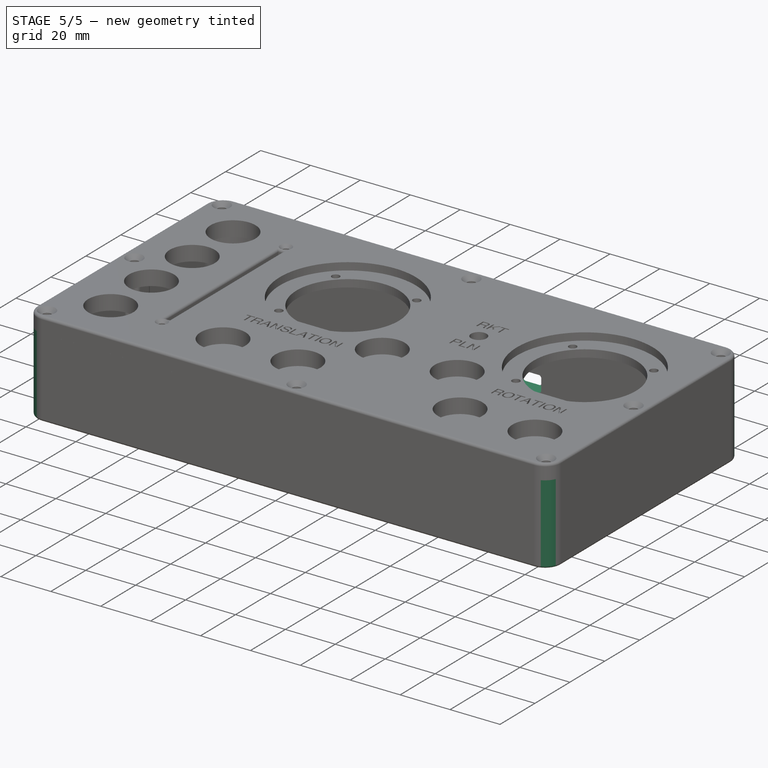
[diagram: stage 5 of 5 — iso view after this stage's code; geometry added in this stage tinted green]
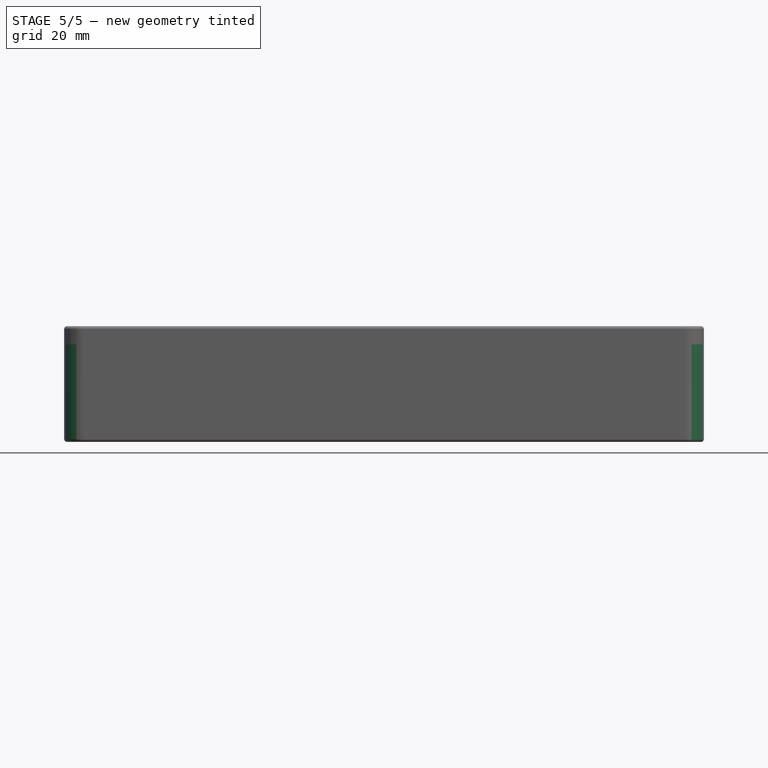
[diagram: stage 5 of 5 — front view after this stage's code; geometry added in this stage tinted green]
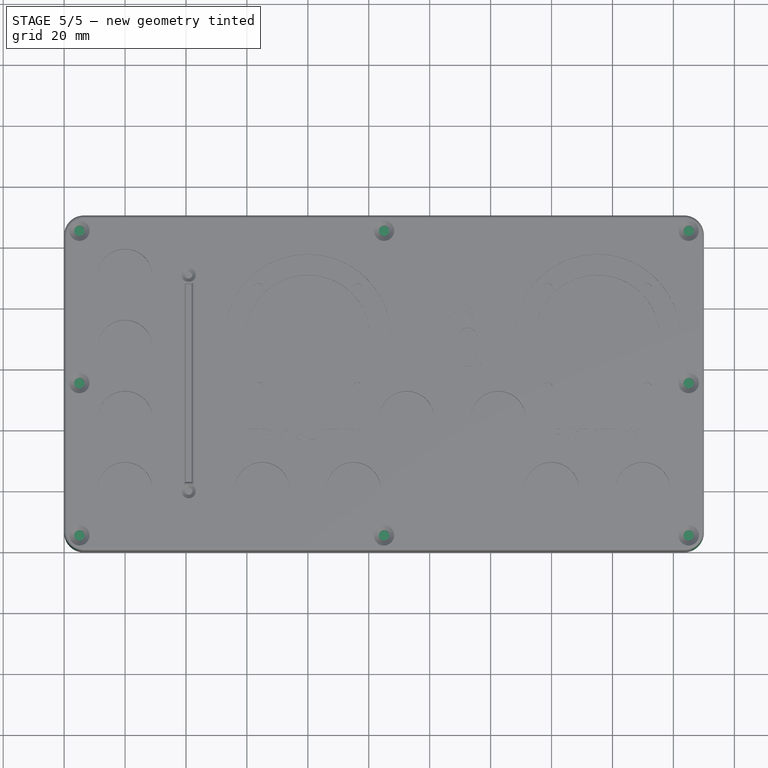
[diagram: stage 5 of 5 — top view after this stage's code; geometry added in this stage tinted green]
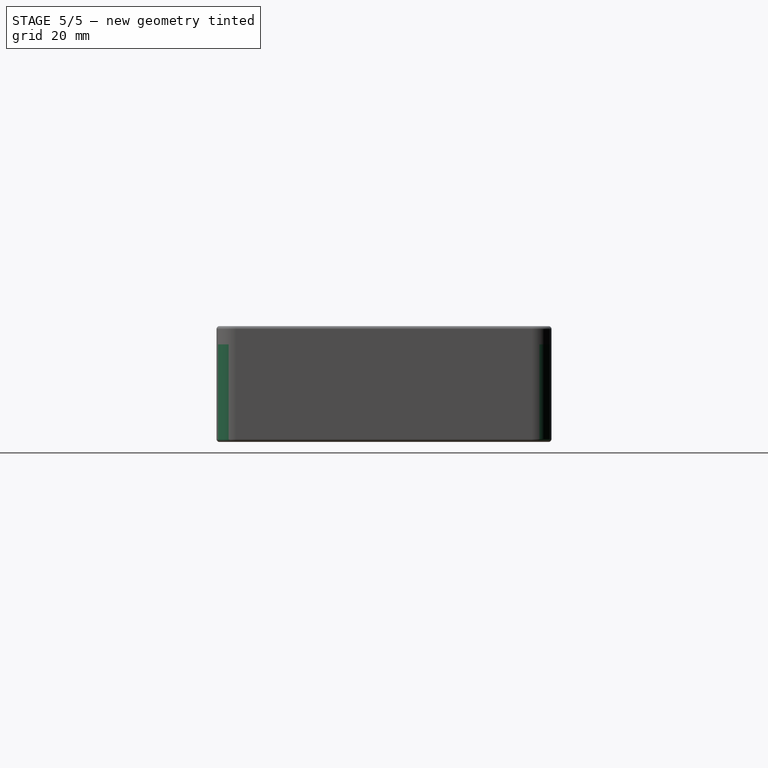
[diagram: stage 5 of 5 — right view after this stage's code; geometry added in this stage tinted green]
FEATURE [PartDesign::Pocket] Pocket009  label="housingScrewHole"
  BaseFeature = -> Fillet002
  Direction = (0,0,-1)
  Length = 7
  Length2 = 5
  Profile = -> Binder003
  Refine = true
  Suppressed = false
  Type = 0
FEATURE [PartDesign::Fillet] Fillet003  label="housingCornerFillet"
  Base = -> Pocket009 [Edge59,Edge55,Edge56,Edge53]
  BaseFeature = -> Pocket009
  Radius = 6.5
  Refine = true
  SupportTransform = false
  Suppressed = false
  UseAllEdges = false
FEATURE [PartDesign::Fillet] Fillet004  label="housingEdgeFillet"
  Base = -> Fillet003 [Edge57]
  BaseFeature = -> Fillet003
  Radius = 1
  Refine = true
  SupportTransform = false
  Suppressed = false
  UseAllEdges = false
FEATURE [PartDesign::Pocket] Pocket010  label="feetRecess"
  BaseFeature = -> Fillet004
  Direction = (0,0,-1)
  Length = 1
  Length2 = 5
  Profile = -> Sketch017
  ReferenceAxis = -> Sketch017 [N_Axis]
  Refine = true
  Reversed = true
  Suppressed = false
  Type = 0
FEATURE [PartDesign::Pocket] Pocket011  label="cableAccess"
  BaseFeature = -> Pocket010
  Direction = (0,1,-2e-16)
  Length = 5
  Length2 = 5
  Profile = -> Sketch018
  ReferenceAxis = -> Sketch018 [N_Axis]
  Refine = true
  Reversed = true
  Suppressed = false
  Type = 2
FEATURE [PartDesign::Body] Body  label="faceplate"
  AllowCompound = false
  Group = -> [Binder,Pad,Sketch001,Pocket,Sketch003,Pocket002,Sketch004,Pocket003,Sketch005,Pocket004,Fillet006,Pocket012,Sketch019,Hole,Sketch006,Pocket006,Pocket008,Pocket007,Binder001,Hole001,Fillet,Fillet001,Sketch009,Sketch010,Sketch011]
  Origin = -> Origin
  Tip = -> Fillet001
FEATURE [PartDesign::Fillet] Fillet007  label="cableAccessFillet"
  Base = -> Pocket011 [Edge208,Edge207,Edge206,Edge205]
  BaseFeature = -> Pocket011
  Radius = 1
  Refine = true
  SupportTransform = false
  Suppressed = false
  UseAllEdges = false
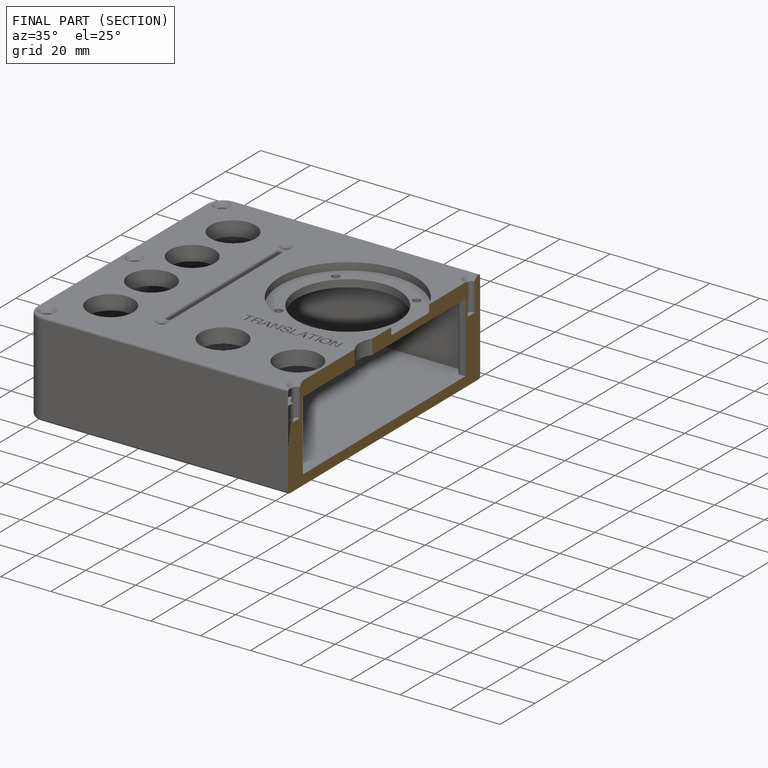
[diagram: finished part — half-section view (interior)]
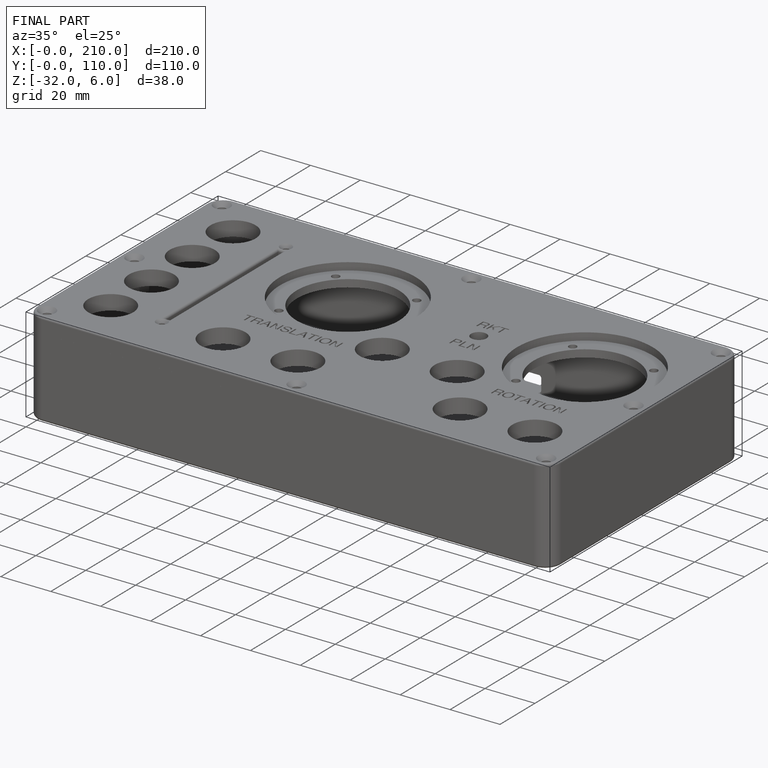
[diagram: finished part — iso view with bounding-box wireframe]
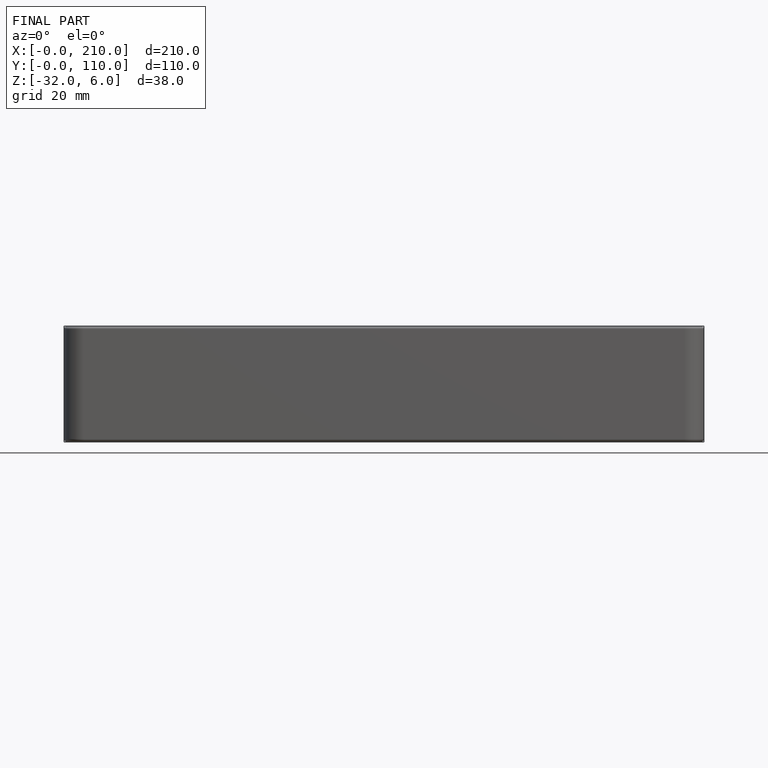
[diagram: finished part — front view with bounding-box wireframe]
